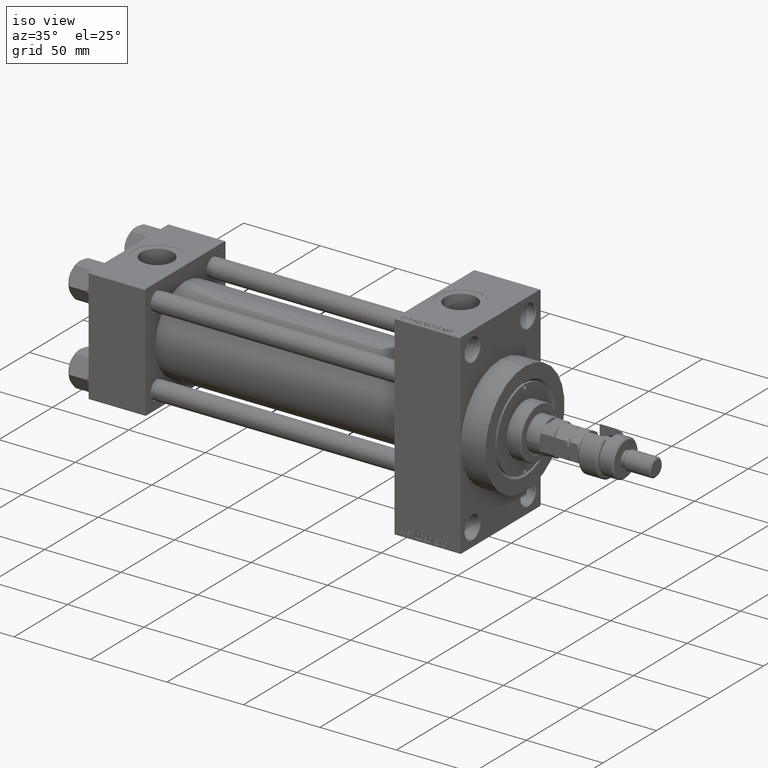
[diagram: clean part render]
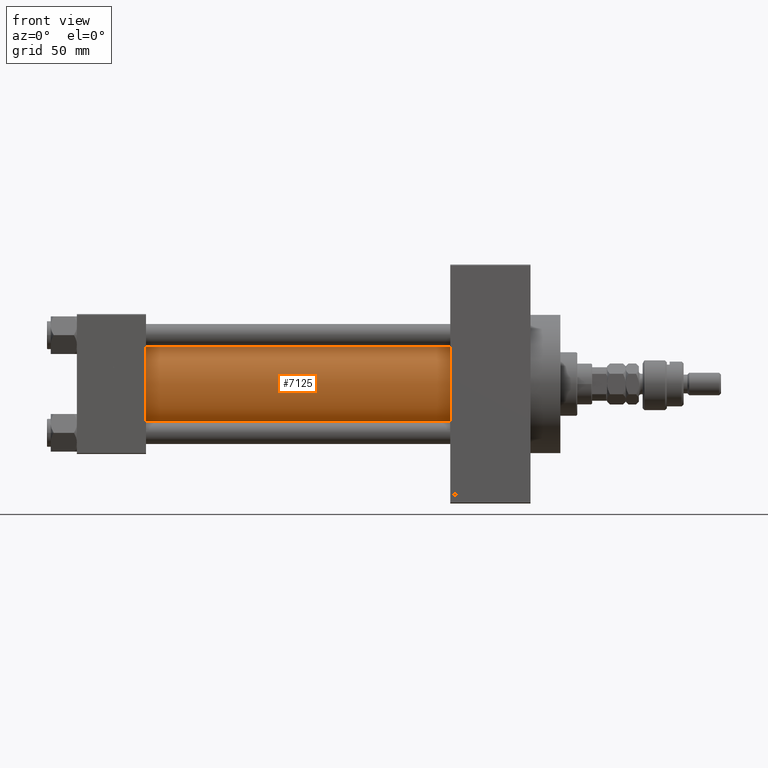
[diagram: tour spotlight — one face highlighted and labeled with its STEP entity id]
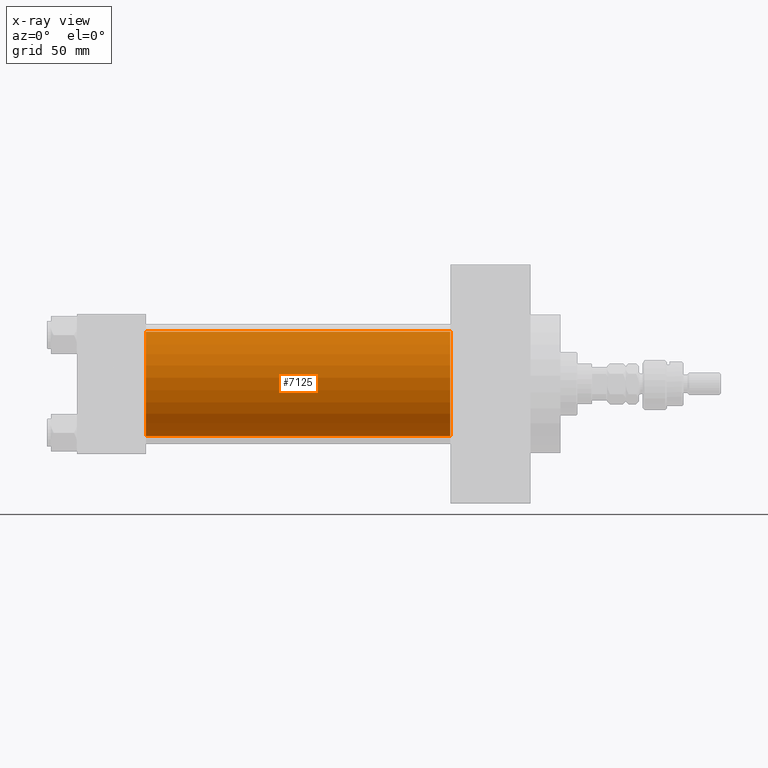
[diagram: x-ray of the same camera — body ghosted, this tour face saturated]
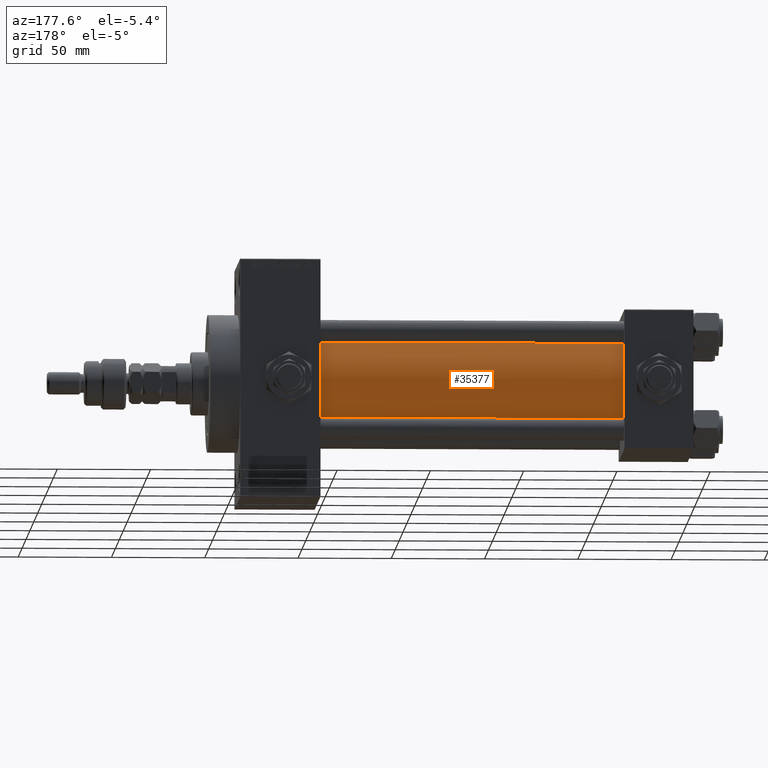
[diagram: tour spotlight — one face highlighted and labeled with its STEP entity id]
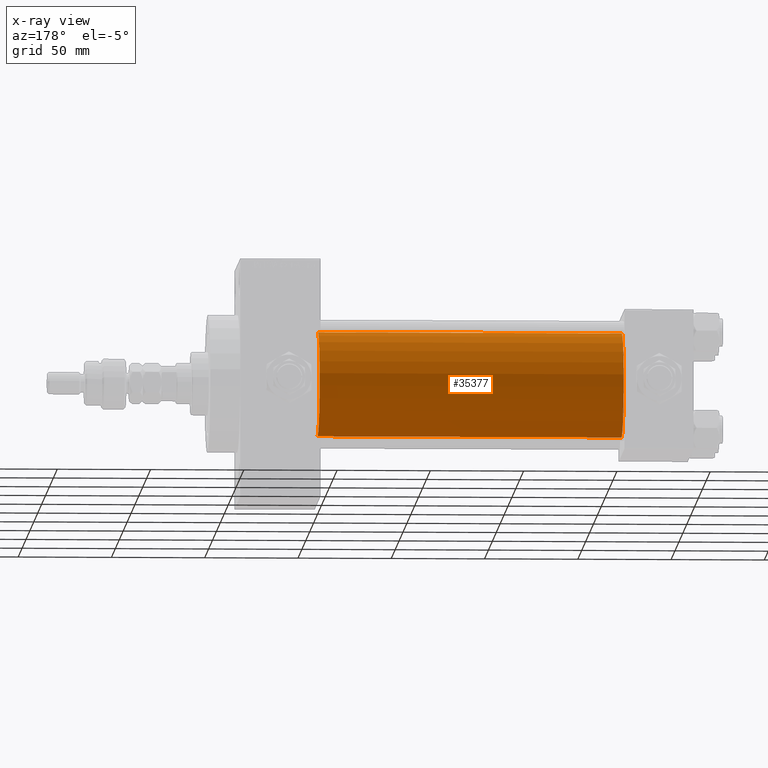
[diagram: x-ray of the same camera — body ghosted, this tour face saturated]
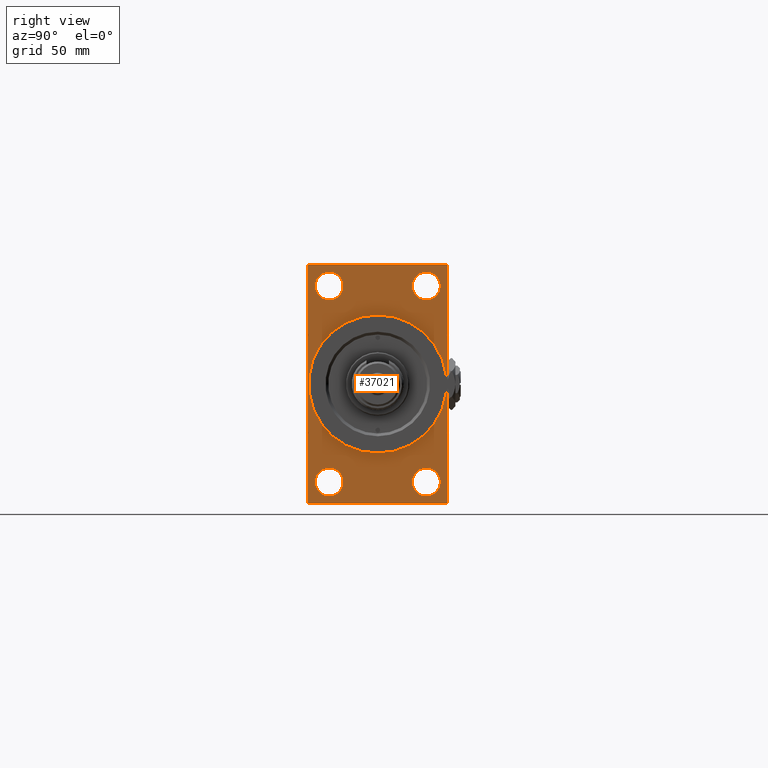
[diagram: tour spotlight — one face highlighted and labeled with its STEP entity id]
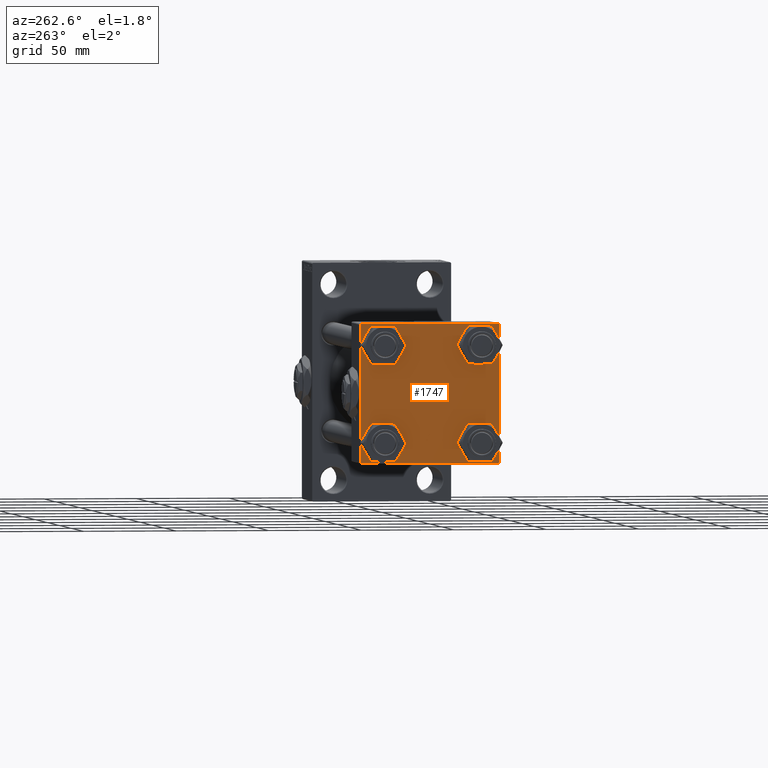
[diagram: tour spotlight — one face highlighted and labeled with its STEP entity id]
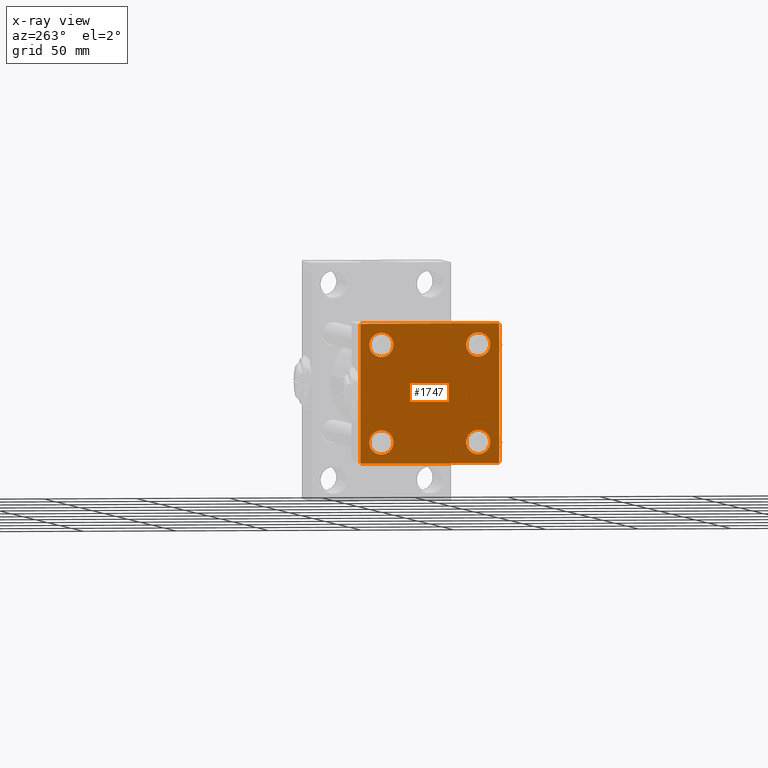
[diagram: x-ray of the same camera — body ghosted, this tour face saturated]
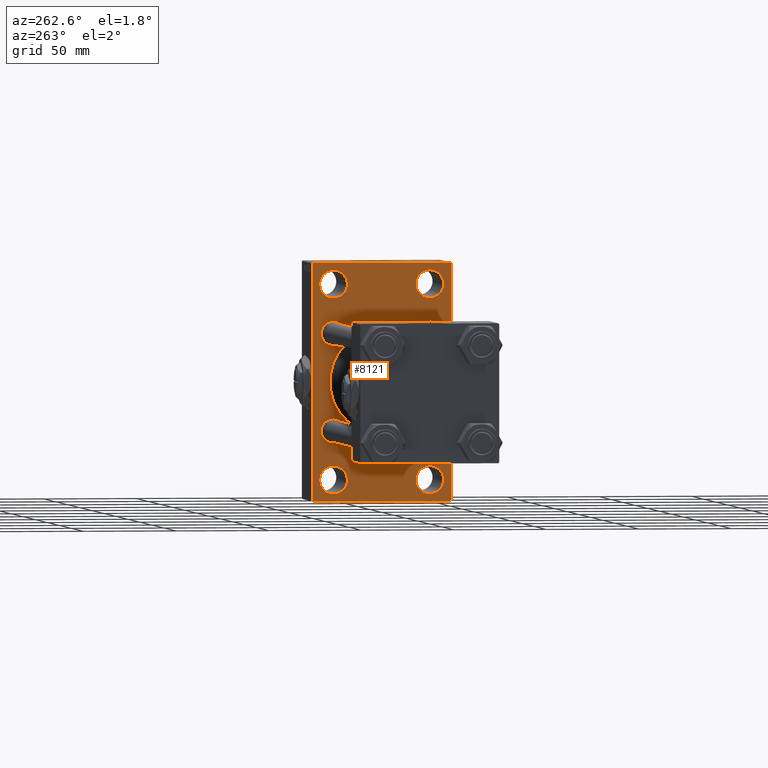
[diagram: tour spotlight — one face highlighted and labeled with its STEP entity id]
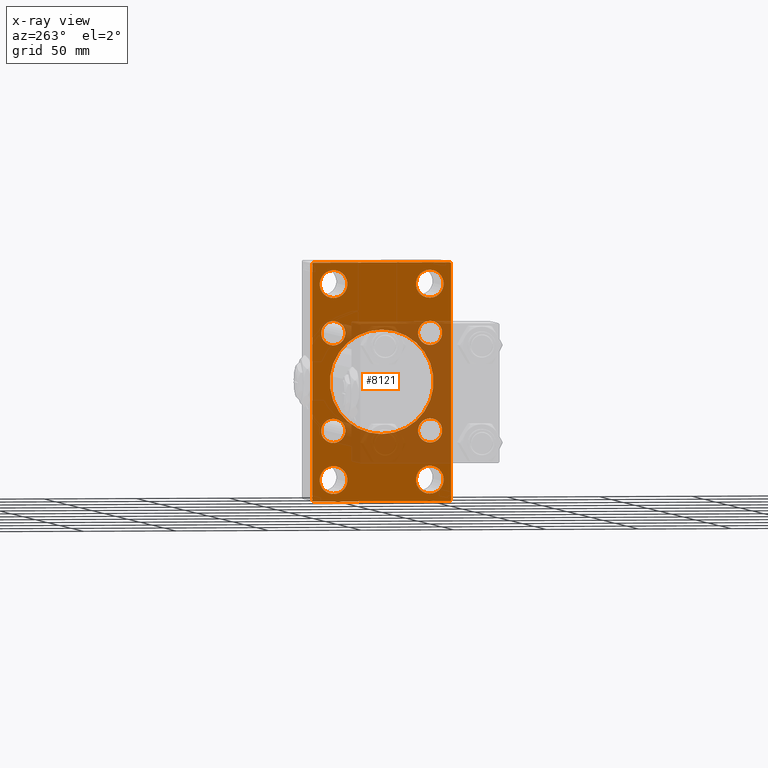
[diagram: x-ray of the same camera — body ghosted, this tour face saturated]
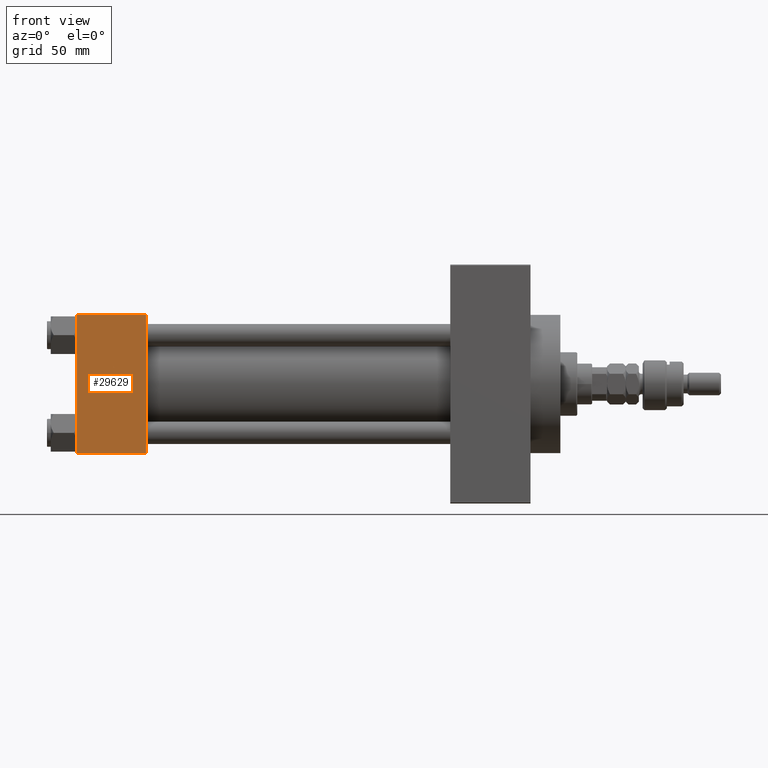
[diagram: tour spotlight — one face highlighted and labeled with its STEP entity id]
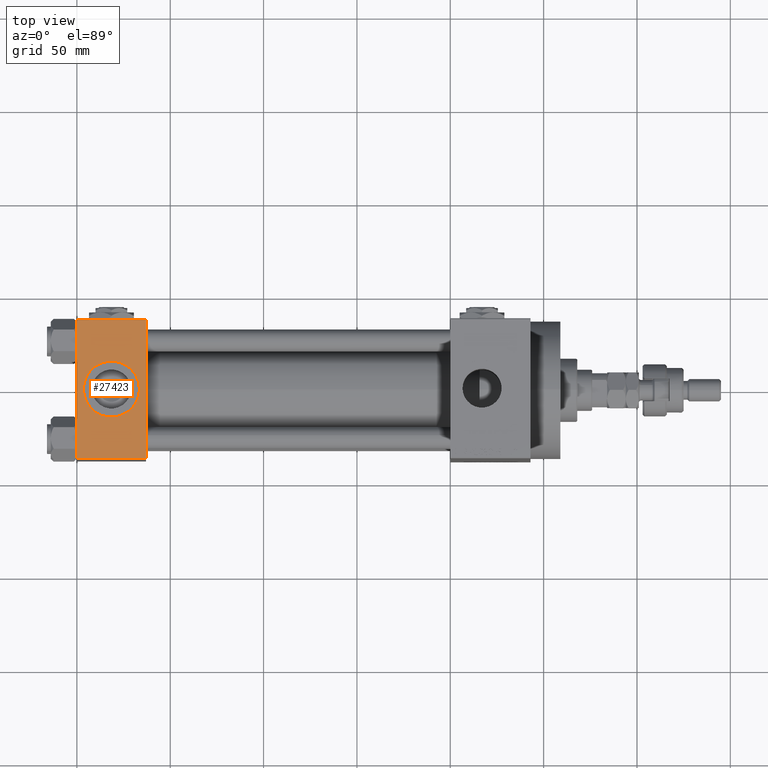
[diagram: tour spotlight — one face highlighted and labeled with its STEP entity id]
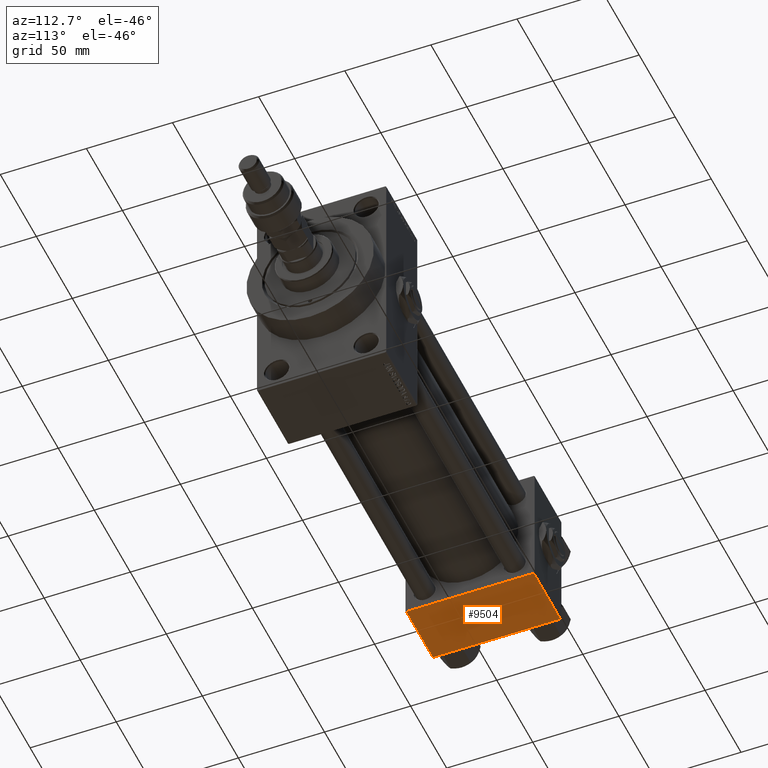
[diagram: tour spotlight — one face highlighted and labeled with its STEP entity id]
A machine part: a face-by-face anatomy tour. The part has 1297 B-rep faces; the first image is the clean iso view, then the 8 largest visible faces are spotlighted one at a time (largest first), each with its STEP entity span.

Face 1 — front view, entity #7125. An x-ray twin of the same camera follows (body ghosted, this face saturated) — the face is partly hidden behind the body. In plain terms, the highlighted cylindrical surface (partial cylindrical patch) has radius 28 mm, axis along (-1, -0, -0).
Definition (entity closure, byte-faithful):
#479 = DIRECTION ( 'NONE',  ( -1.000000000000000000, -0.000000000000000000, -0.000000000000000000 ) ) ;
#2561 = FACE_OUTER_BOUND ( 'NONE', #20864, .T. ) ;
#4379 = DIRECTION ( 'NONE',  ( 1.000000000000000000, 0.000000000000000000, 0.000000000000000000 ) ) ;
#4486 = CARTESIAN_POINT ( 'NONE',  ( 200.0000000000000000, 8.269258236473784371E-16, -28.00000000000000000 ) ) ;
#7125 = ADVANCED_FACE ( 'NONE', ( #2561 ), #51230, .T. ) ;
#8281 = VERTEX_POINT ( 'NONE', #4486 ) ;
#8457 = EDGE_CURVE ( 'NONE', #28771, #40558, #30944, .T. ) ;
#9701 = ORIENTED_EDGE ( 'NONE', *, *, #8457, .T. ) ;
#10754 = EDGE_CURVE ( 'NONE', #28771, #8281, #20560, .T. ) ;
#11192 = ORIENTED_EDGE ( 'NONE', *, *, #19634, .T. ) ;
#13938 = CARTESIAN_POINT ( 'NONE',  ( 200.0000000000000000, -2.602085213965210642E-15, 0.000000000000000000 ) ) ;
#17110 = DIRECTION ( 'NONE',  ( 0.000000000000000000, 0.000000000000000000, 1.000000000000000000 ) ) ;
#18036 = CARTESIAN_POINT ( 'NONE',  ( 37.00000000000000711, 8.269258236473784371E-16, -28.00000000000000000 ) ) ;
#19634 = EDGE_CURVE ( 'NONE', #40558, #24410, #37702, .T. ) ;
#20560 = CIRCLE ( 'NONE', #27286, 28.00000000000000000 ) ;
#20864 = EDGE_LOOP ( 'NONE', ( #46491, #46182, #9701, #11192 ) ) ;
#21088 = DIRECTION ( 'NONE',  ( 1.000000000000000000, -0.000000000000000000, 0.000000000000000000 ) ) ;
#22670 = DIRECTION ( 'NONE',  ( 0.000000000000000000, 0.000000000000000000, 1.000000000000000000 ) ) ;
#24410 = VERTEX_POINT ( 'NONE', #18036 ) ;
#27286 = AXIS2_PLACEMENT_3D ( 'NONE', #40410, #4379, #35922 ) ;
#27500 = LINE ( 'NONE', #47876, #38921 ) ;
#28771 = VERTEX_POINT ( 'NONE', #30042 ) ;
#28847 = AXIS2_PLACEMENT_3D ( 'NONE', #13938, #34617, #22670 ) ;
#30042 = CARTESIAN_POINT ( 'NONE',  ( 200.0000000000000000, -2.602085213965210642E-15, 28.00000000000000000 ) ) ;
#30944 = LINE ( 'NONE', #31721, #47504 ) ;
#31721 = CARTESIAN_POINT ( 'NONE',  ( 200.0000000000000000, -2.602085213965210642E-15, 28.00000000000000000 ) ) ;
#34617 = DIRECTION ( 'NONE',  ( -1.000000000000000000, -0.000000000000000000, -0.000000000000000000 ) ) ;
#35922 = DIRECTION ( 'NONE',  ( 0.000000000000000000, 0.000000000000000000, -1.000000000000000000 ) ) ;
#37702 = CIRCLE ( 'NONE', #50312, 28.00000000000000000 ) ;
#38921 = VECTOR ( 'NONE', #479, 1000.000000000000000 ) ;
#40410 = CARTESIAN_POINT ( 'NONE',  ( 200.0000000000000000, -2.602085213965210642E-15, 0.000000000000000000 ) ) ;
#40558 = VERTEX_POINT ( 'NONE', #52321 ) ;
#46062 = EDGE_CURVE ( 'NONE', #8281, #24410, #27500, .T. ) ;
#46182 = ORIENTED_EDGE ( 'NONE', *, *, #10754, .F. ) ;
#46491 = ORIENTED_EDGE ( 'NONE', *, *, #46062, .F. ) ;
#47504 = VECTOR ( 'NONE', #49411, 1000.000000000000000 ) ;
#47876 = CARTESIAN_POINT ( 'NONE',  ( 200.0000000000000000, 8.269258236473784371E-16, -28.00000000000000000 ) ) ;
#48871 = CARTESIAN_POINT ( 'NONE',  ( 37.00000000000000711, -2.602085213965210642E-15, 0.000000000000000000 ) ) ;
#49411 = DIRECTION ( 'NONE',  ( -1.000000000000000000, -0.000000000000000000, -0.000000000000000000 ) ) ;
#50312 = AXIS2_PLACEMENT_3D ( 'NONE', #48871, #21088, #17110 ) ;
#51230 = CYLINDRICAL_SURFACE ( 'NONE', #28847, 28.00000000000000000 ) ;
#52321 = CARTESIAN_POINT ( 'NONE',  ( 37.00000000000000711, -2.602085213965210642E-15, 28.00000000000000000 ) ) ;

Face 2 — auxiliary view, entity #35377. An x-ray twin of the same camera follows (body ghosted, this face saturated) — the face is partly hidden behind the body. In plain terms, the highlighted cylindrical surface (partial cylindrical patch) has radius 28 mm, axis along (-1, -0, -0).
Definition (entity closure, byte-faithful):
#479 = DIRECTION ( 'NONE',  ( -1.000000000000000000, -0.000000000000000000, -0.000000000000000000 ) ) ;
#1512 = AXIS2_PLACEMENT_3D ( 'NONE', #22332, #38253, #42730 ) ;
#2091 = CARTESIAN_POINT ( 'NONE',  ( 200.0000000000000000, -2.602085213965210642E-15, 0.000000000000000000 ) ) ;
#4486 = CARTESIAN_POINT ( 'NONE',  ( 200.0000000000000000, 8.269258236473784371E-16, -28.00000000000000000 ) ) ;
#5673 = ORIENTED_EDGE ( 'NONE', *, *, #8457, .F. ) ;
#7947 = EDGE_LOOP ( 'NONE', ( #32048, #16789, #10946, #5673 ) ) ;
#8281 = VERTEX_POINT ( 'NONE', #4486 ) ;
#8457 = EDGE_CURVE ( 'NONE', #28771, #40558, #30944, .T. ) ;
#10946 = ORIENTED_EDGE ( 'NONE', *, *, #27859, .T. ) ;
#16789 = ORIENTED_EDGE ( 'NONE', *, *, #46062, .T. ) ;
#18036 = CARTESIAN_POINT ( 'NONE',  ( 37.00000000000000711, 8.269258236473784371E-16, -28.00000000000000000 ) ) ;
#18222 = DIRECTION ( 'NONE',  ( 1.000000000000000000, 0.000000000000000000, 0.000000000000000000 ) ) ;
#19698 = CYLINDRICAL_SURFACE ( 'NONE', #31848, 28.00000000000000000 ) ;
#19961 = DIRECTION ( 'NONE',  ( -1.000000000000000000, -0.000000000000000000, -0.000000000000000000 ) ) ;
#21031 = CIRCLE ( 'NONE', #49772, 28.00000000000000000 ) ;
#22332 = CARTESIAN_POINT ( 'NONE',  ( 37.00000000000000711, -2.602085213965210642E-15, 0.000000000000000000 ) ) ;
#24311 = CIRCLE ( 'NONE', #1512, 28.00000000000000000 ) ;
#24410 = VERTEX_POINT ( 'NONE', #18036 ) ;
#27500 = LINE ( 'NONE', #47876, #38921 ) ;
#27859 = EDGE_CURVE ( 'NONE', #24410, #40558, #24311, .T. ) ;
#28771 = VERTEX_POINT ( 'NONE', #30042 ) ;
#30042 = CARTESIAN_POINT ( 'NONE',  ( 200.0000000000000000, -2.602085213965210642E-15, 28.00000000000000000 ) ) ;
#30944 = LINE ( 'NONE', #31721, #47504 ) ;
#31721 = CARTESIAN_POINT ( 'NONE',  ( 200.0000000000000000, -2.602085213965210642E-15, 28.00000000000000000 ) ) ;
#31848 = AXIS2_PLACEMENT_3D ( 'NONE', #35867, #19961, #36130 ) ;
#32048 = ORIENTED_EDGE ( 'NONE', *, *, #40346, .F. ) ;
#35377 = ADVANCED_FACE ( 'NONE', ( #40086 ), #19698, .T. ) ;
#35867 = CARTESIAN_POINT ( 'NONE',  ( 200.0000000000000000, -2.602085213965210642E-15, 0.000000000000000000 ) ) ;
#36130 = DIRECTION ( 'NONE',  ( 0.000000000000000000, 0.000000000000000000, 1.000000000000000000 ) ) ;
#37850 = DIRECTION ( 'NONE',  ( 0.000000000000000000, 0.000000000000000000, -1.000000000000000000 ) ) ;
#38253 = DIRECTION ( 'NONE',  ( 1.000000000000000000, -0.000000000000000000, 0.000000000000000000 ) ) ;
#38921 = VECTOR ( 'NONE', #479, 1000.000000000000000 ) ;
#40086 = FACE_OUTER_BOUND ( 'NONE', #7947, .T. ) ;
#40346 = EDGE_CURVE ( 'NONE', #8281, #28771, #21031, .T. ) ;
#40558 = VERTEX_POINT ( 'NONE', #52321 ) ;
#42730 = DIRECTION ( 'NONE',  ( 0.000000000000000000, 0.000000000000000000, 1.000000000000000000 ) ) ;
#46062 = EDGE_CURVE ( 'NONE', #8281, #24410, #27500, .T. ) ;
#47504 = VECTOR ( 'NONE', #49411, 1000.000000000000000 ) ;
#47876 = CARTESIAN_POINT ( 'NONE',  ( 200.0000000000000000, 8.269258236473784371E-16, -28.00000000000000000 ) ) ;
#49411 = DIRECTION ( 'NONE',  ( -1.000000000000000000, -0.000000000000000000, -0.000000000000000000 ) ) ;
#49772 = AXIS2_PLACEMENT_3D ( 'NONE', #2091, #18222, #37850 ) ;
#52321 = CARTESIAN_POINT ( 'NONE',  ( 37.00000000000000711, -2.602085213965210642E-15, 28.00000000000000000 ) ) ;

Face 3 — right view, entity #37021. In plain terms, the highlighted planar face has unit normal (-1, 0, 0).
Definition (entity closure, byte-faithful):
#409 = CARTESIAN_POINT ( 'NONE',  ( 243.0000000000000000, -37.49999999999999289, 63.99999999999997158 ) ) ;
#755 = CARTESIAN_POINT ( 'NONE',  ( 243.0000000000000000, 37.49999999999999289, -63.50000000000007105 ) ) ;
#2437 = EDGE_LOOP ( 'NONE', ( #3268, #38711 ) ) ;
#3268 = ORIENTED_EDGE ( 'NONE', *, *, #43937, .T. ) ;
#3518 = CARTESIAN_POINT ( 'NONE',  ( 243.0000000000000000, 37.49999999999999289, -64.00000000000000000 ) ) ;
#3789 = VERTEX_POINT ( 'NONE', #48298 ) ;
#4241 = CIRCLE ( 'NONE', #33863, 7.500000000000034639 ) ;
#4284 = VERTEX_POINT ( 'NONE', #43746 ) ;
#4748 = VERTEX_POINT ( 'NONE', #49204 ) ;
#5254 = VECTOR ( 'NONE', #24224, 1000.000000000000000 ) ;
#5319 = CARTESIAN_POINT ( 'NONE',  ( 243.0000000000000000, 26.00000000000000000, 44.99999999999995737 ) ) ;
#5510 = ORIENTED_EDGE ( 'NONE', *, *, #6406, .T. ) ;
#5576 = FACE_BOUND ( 'NONE', #2437, .T. ) ;
#5837 = AXIS2_PLACEMENT_3D ( 'NONE', #51538, #22970, #15279 ) ;
#5951 = AXIS2_PLACEMENT_3D ( 'NONE', #23016, #15858, #11622 ) ;
#6019 = AXIS2_PLACEMENT_3D ( 'NONE', #51098, #22797, #7166 ) ;
#6406 = EDGE_CURVE ( 'NONE', #14502, #4284, #44901, .T. ) ;
#6436 = ORIENTED_EDGE ( 'NONE', *, *, #20385, .F. ) ;
#6548 = AXIS2_PLACEMENT_3D ( 'NONE', #14294, #42132, #13778 ) ;
#6700 = CIRCLE ( 'NONE', #32903, 7.500000000000034639 ) ;
#6778 = VERTEX_POINT ( 'NONE', #41827 ) ;
#7128 = AXIS2_PLACEMENT_3D ( 'NONE', #30068, #14157, #9148 ) ;
#7166 = DIRECTION ( 'NONE',  ( 0.000000000000000000, 0.000000000000000000, 1.000000000000000000 ) ) ;
#7433 = CARTESIAN_POINT ( 'NONE',  ( 243.0000000000000000, -25.99999999999999645, 44.99999999999996447 ) ) ;
#7477 = DIRECTION ( 'NONE',  ( 0.000000000000000000, 0.000000000000000000, 1.000000000000000000 ) ) ;
#8058 = VECTOR ( 'NONE', #29420, 1000.000000000000114 ) ;
#8607 = LINE ( 'NONE', #409, #5254 ) ;
#9148 = DIRECTION ( 'NONE',  ( 0.000000000000000000, 0.000000000000000000, 1.000000000000000000 ) ) ;
#9510 = DIRECTION ( 'NONE',  ( -0.000000000000000000, 0.7071067811865574537, 0.7071067811865376918 ) ) ;
#9972 = VERTEX_POINT ( 'NONE', #17868 ) ;
#10106 = ORIENTED_EDGE ( 'NONE', *, *, #24201, .T. ) ;
#10948 = ORIENTED_EDGE ( 'NONE', *, *, #35670, .F. ) ;
#11042 = CIRCLE ( 'NONE', #5951, 7.500000000000034639 ) ;
#11112 = DIRECTION ( 'NONE',  ( 0.000000000000000000, -1.000000000000000000, -1.850371707708594563E-16 ) ) ;
#11278 = VERTEX_POINT ( 'NONE', #35275 ) ;
#11622 = DIRECTION ( 'NONE',  ( 0.000000000000000000, 0.000000000000000000, 1.000000000000000000 ) ) ;
#12150 = CIRCLE ( 'NONE', #40897, 7.500000000000034639 ) ;
#12202 = DIRECTION ( 'NONE',  ( 0.000000000000000000, 0.000000000000000000, 1.000000000000000000 ) ) ;
#12349 = CARTESIAN_POINT ( 'NONE',  ( 243.0000000000000000, 26.00000000000000000, -52.49999999999999289 ) ) ;
#12978 = VERTEX_POINT ( 'NONE', #51254 ) ;
#13180 = EDGE_CURVE ( 'NONE', #42836, #11278, #34184, .T. ) ;
#13578 = DIRECTION ( 'NONE',  ( 1.000000000000000000, 0.000000000000000000, 0.000000000000000000 ) ) ;
#13658 = ORIENTED_EDGE ( 'NONE', *, *, #50178, .T. ) ;
#13732 = DIRECTION ( 'NONE',  ( 0.000000000000000000, 0.000000000000000000, 1.000000000000000000 ) ) ;
#13778 = DIRECTION ( 'NONE',  ( -0.000000000000000000, 0.000000000000000000, 1.000000000000000000 ) ) ;
#13899 = AXIS2_PLACEMENT_3D ( 'NONE', #40811, #32598, #12202 ) ;
#13986 = DIRECTION ( 'NONE',  ( -1.000000000000000000, 0.000000000000000000, -0.000000000000000000 ) ) ;
#14031 = DIRECTION ( 'NONE',  ( -0.000000000000000000, -0.7071067811865524577, -0.7071067811865426878 ) ) ;
#14157 = DIRECTION ( 'NONE',  ( -1.000000000000000000, 0.000000000000000000, -0.000000000000000000 ) ) ;
#14294 = CARTESIAN_POINT ( 'NONE',  ( 243.0000000000000000, 0.000000000000000000, 0.000000000000000000 ) ) ;
#14502 = VERTEX_POINT ( 'NONE', #30345 ) ;
#15279 = DIRECTION ( 'NONE',  ( 0.000000000000000000, 0.000000000000000000, -1.000000000000000000 ) ) ;
#15323 = EDGE_CURVE ( 'NONE', #4748, #37028, #12150, .T. ) ;
#15418 = LINE ( 'NONE', #3518, #34728 ) ;
#15682 = DIRECTION ( 'NONE',  ( 0.000000000000000000, -1.000000000000000000, -1.850371707708594563E-16 ) ) ;
#15858 = DIRECTION ( 'NONE',  ( -1.000000000000000000, 0.000000000000000000, -0.000000000000000000 ) ) ;
#16017 = CARTESIAN_POINT ( 'NONE',  ( 243.0000000000000000, 4.531193156845206793E-15, -37.00000000000000000 ) ) ;
#17122 = CARTESIAN_POINT ( 'NONE',  ( 243.0000000000000000, 0.000000000000000000, 37.00000000000000000 ) ) ;
#17151 = EDGE_CURVE ( 'NONE', #37028, #4748, #20669, .T. ) ;
#17449 = CARTESIAN_POINT ( 'NONE',  ( 243.0000000000000000, 26.00000000000000000, 52.49999999999999289 ) ) ;
#17605 = EDGE_CURVE ( 'NONE', #6778, #26083, #46890, .T. ) ;
#17868 = CARTESIAN_POINT ( 'NONE',  ( 243.0000000000000000, 37.00000000000000000, 63.99999999999998579 ) ) ;
#20102 = AXIS2_PLACEMENT_3D ( 'NONE', #40054, #32624, #7477 ) ;
#20385 = EDGE_CURVE ( 'NONE', #26003, #32837, #35113, .T. ) ;
#20669 = CIRCLE ( 'NONE', #7128, 7.500000000000034639 ) ;
#20938 = LINE ( 'NONE', #29148, #8058 ) ;
#21675 = CIRCLE ( 'NONE', #48718, 37.00000000000000000 ) ;
#22400 = EDGE_LOOP ( 'NONE', ( #5510, #33240 ) ) ;
#22629 = CIRCLE ( 'NONE', #20102, 7.500000000000034639 ) ;
#22797 = DIRECTION ( 'NONE',  ( -1.000000000000000000, 0.000000000000000000, -0.000000000000000000 ) ) ;
#22970 = DIRECTION ( 'NONE',  ( 1.000000000000000000, 0.000000000000000000, 0.000000000000000000 ) ) ;
#23016 = CARTESIAN_POINT ( 'NONE',  ( 243.0000000000000000, -25.99999999999999645, -52.49999999999999289 ) ) ;
#23317 = ORIENTED_EDGE ( 'NONE', *, *, #13180, .T. ) ;
#23936 = CARTESIAN_POINT ( 'NONE',  ( 243.0000000000000000, -37.00000000000001421, 63.99999999999997158 ) ) ;
#24057 = LINE ( 'NONE', #43669, #31995 ) ;
#24201 = EDGE_CURVE ( 'NONE', #26083, #6778, #22629, .T. ) ;
#24224 = DIRECTION ( 'NONE',  ( 0.000000000000000000, 0.000000000000000000, -1.000000000000000000 ) ) ;
#24497 = VERTEX_POINT ( 'NONE', #17122 ) ;
#24792 = VERTEX_POINT ( 'NONE', #16017 ) ;
#25704 = FACE_BOUND ( 'NONE', #50201, .T. ) ;
#25858 = LINE ( 'NONE', #49933, #39822 ) ;
#26003 = VERTEX_POINT ( 'NONE', #37678 ) ;
#26083 = VERTEX_POINT ( 'NONE', #7433 ) ;
#28082 = ORIENTED_EDGE ( 'NONE', *, *, #47881, .T. ) ;
#28667 = CIRCLE ( 'NONE', #5837, 37.00000000000000000 ) ;
#29148 = CARTESIAN_POINT ( 'NONE',  ( 243.0000000000000000, -37.00000000000002132, -64.00000000000001421 ) ) ;
#29420 = DIRECTION ( 'NONE',  ( 0.000000000000000000, 0.7071067811865376918, -0.7071067811865573427 ) ) ;
#29650 = CARTESIAN_POINT ( 'NONE',  ( 243.0000000000000000, 37.49999999999999289, -63.50000000000007105 ) ) ;
#30068 = CARTESIAN_POINT ( 'NONE',  ( 243.0000000000000000, 26.00000000000000000, 52.49999999999999289 ) ) ;
#30345 = CARTESIAN_POINT ( 'NONE',  ( 243.0000000000000000, 26.00000000000000000, -60.00000000000002842 ) ) ;
#30364 = DIRECTION ( 'NONE',  ( 0.000000000000000000, -0.7071067811865474617, 0.7071067811865474617 ) ) ;
#30523 = DIRECTION ( 'NONE',  ( 0.000000000000000000, 0.000000000000000000, -1.000000000000000000 ) ) ;
#30945 = EDGE_LOOP ( 'NONE', ( #10948, #32989 ) ) ;
#31995 = VECTOR ( 'NONE', #11112, 1000.000000000000000 ) ;
#32232 = CARTESIAN_POINT ( 'NONE',  ( 243.0000000000000000, -25.99999999999999645, -52.49999999999999289 ) ) ;
#32598 = DIRECTION ( 'NONE',  ( -1.000000000000000000, 0.000000000000000000, -0.000000000000000000 ) ) ;
#32624 = DIRECTION ( 'NONE',  ( -1.000000000000000000, 0.000000000000000000, -0.000000000000000000 ) ) ;
#32673 = EDGE_CURVE ( 'NONE', #3789, #43994, #20938, .T. ) ;
#32754 = DIRECTION ( 'NONE',  ( 0.000000000000000000, 0.000000000000000000, 1.000000000000000000 ) ) ;
#32817 = EDGE_LOOP ( 'NONE', ( #52012, #34596 ) ) ;
#32837 = VERTEX_POINT ( 'NONE', #755 ) ;
#32903 = AXIS2_PLACEMENT_3D ( 'NONE', #12349, #37002, #32754 ) ;
#32989 = ORIENTED_EDGE ( 'NONE', *, *, #40565, .F. ) ;
#33056 = VECTOR ( 'NONE', #9510, 999.9999999999998863 ) ;
#33240 = ORIENTED_EDGE ( 'NONE', *, *, #40679, .T. ) ;
#33863 = AXIS2_PLACEMENT_3D ( 'NONE', #32232, #36214, #44645 ) ;
#34184 = LINE ( 'NONE', #50289, #45162 ) ;
#34596 = ORIENTED_EDGE ( 'NONE', *, *, #15323, .T. ) ;
#34728 = VECTOR ( 'NONE', #15682, 1000.000000000000000 ) ;
#35113 = LINE ( 'NONE', #39339, #45303 ) ;
#35270 = ORIENTED_EDGE ( 'NONE', *, *, #17605, .T. ) ;
#35275 = CARTESIAN_POINT ( 'NONE',  ( 243.0000000000000000, -37.49999999999999289, 63.50000000000000000 ) ) ;
#35374 = DIRECTION ( 'NONE',  ( 0.000000000000000000, -5.421010862427522170E-17, -1.000000000000000000 ) ) ;
#35417 = CARTESIAN_POINT ( 'NONE',  ( 243.0000000000000000, -25.99999999999999645, -60.00000000000002842 ) ) ;
#35481 = CARTESIAN_POINT ( 'NONE',  ( 243.0000000000000000, -37.00000000000002132, -64.00000000000001421 ) ) ;
#35625 = ORIENTED_EDGE ( 'NONE', *, *, #39384, .T. ) ;
#35670 = EDGE_CURVE ( 'NONE', #24497, #24792, #21675, .T. ) ;
#36214 = DIRECTION ( 'NONE',  ( -1.000000000000000000, 0.000000000000000000, -0.000000000000000000 ) ) ;
#37002 = DIRECTION ( 'NONE',  ( -1.000000000000000000, 0.000000000000000000, -0.000000000000000000 ) ) ;
#37021 = ADVANCED_FACE ( 'NONE', ( #25704, #5576, #41862, #38687, #37641, #50553 ), #46855, .F. ) ;
#37028 = VERTEX_POINT ( 'NONE', #5319 ) ;
#37424 = ORIENTED_EDGE ( 'NONE', *, *, #47523, .T. ) ;
#37641 = FACE_BOUND ( 'NONE', #30945, .T. ) ;
#37678 = CARTESIAN_POINT ( 'NONE',  ( 243.0000000000000000, 37.50000000000000000, 63.49999999999998579 ) ) ;
#38687 = FACE_BOUND ( 'NONE', #32817, .T. ) ;
#38711 = ORIENTED_EDGE ( 'NONE', *, *, #42513, .T. ) ;
#39176 = VERTEX_POINT ( 'NONE', #43474 ) ;
#39339 = CARTESIAN_POINT ( 'NONE',  ( 243.0000000000000000, 37.50000000000000000, 63.99999999999998579 ) ) ;
#39384 = EDGE_CURVE ( 'NONE', #9972, #42836, #24057, .T. ) ;
#39499 = ORIENTED_EDGE ( 'NONE', *, *, #47059, .F. ) ;
#39822 = VECTOR ( 'NONE', #30364, 1000.000000000000114 ) ;
#40054 = CARTESIAN_POINT ( 'NONE',  ( 243.0000000000000000, -25.99999999999999645, 52.50000000000000000 ) ) ;
#40565 = EDGE_CURVE ( 'NONE', #24792, #24497, #28667, .T. ) ;
#40679 = EDGE_CURVE ( 'NONE', #4284, #14502, #6700, .T. ) ;
#40811 = CARTESIAN_POINT ( 'NONE',  ( 243.0000000000000000, -25.99999999999999645, 52.50000000000000000 ) ) ;
#40897 = AXIS2_PLACEMENT_3D ( 'NONE', #17449, #13986, #13732 ) ;
#41442 = VERTEX_POINT ( 'NONE', #35417 ) ;
#41827 = CARTESIAN_POINT ( 'NONE',  ( 243.0000000000000000, -25.99999999999999645, 60.00000000000003553 ) ) ;
#41862 = FACE_BOUND ( 'NONE', #22400, .T. ) ;
#42132 = DIRECTION ( 'NONE',  ( -1.000000000000000000, 0.000000000000000000, -0.000000000000000000 ) ) ;
#42513 = EDGE_CURVE ( 'NONE', #12978, #41442, #4241, .T. ) ;
#42836 = VERTEX_POINT ( 'NONE', #23936 ) ;
#43474 = CARTESIAN_POINT ( 'NONE',  ( 243.0000000000000000, 37.00000000000004974, -64.00000000000000000 ) ) ;
#43669 = CARTESIAN_POINT ( 'NONE',  ( 243.0000000000000000, 37.50000000000000000, 63.99999999999998579 ) ) ;
#43746 = CARTESIAN_POINT ( 'NONE',  ( 243.0000000000000000, 26.00000000000000000, -44.99999999999995737 ) ) ;
#43937 = EDGE_CURVE ( 'NONE', #41442, #12978, #11042, .T. ) ;
#43994 = VERTEX_POINT ( 'NONE', #35481 ) ;
#44645 = DIRECTION ( 'NONE',  ( 0.000000000000000000, 0.000000000000000000, 1.000000000000000000 ) ) ;
#44901 = CIRCLE ( 'NONE', #6019, 7.500000000000034639 ) ;
#45162 = VECTOR ( 'NONE', #14031, 1000.000000000000000 ) ;
#45303 = VECTOR ( 'NONE', #35374, 1000.000000000000000 ) ;
#46317 = EDGE_LOOP ( 'NONE', ( #13658, #49887, #39499, #37424, #6436, #28082, #35625, #23317 ) ) ;
#46657 = CARTESIAN_POINT ( 'NONE',  ( 243.0000000000000000, 0.000000000000000000, 0.000000000000000000 ) ) ;
#46855 = PLANE ( 'NONE',  #6548 ) ;
#46890 = CIRCLE ( 'NONE', #13899, 7.500000000000034639 ) ;
#47059 = EDGE_CURVE ( 'NONE', #39176, #43994, #15418, .T. ) ;
#47523 = EDGE_CURVE ( 'NONE', #39176, #32837, #49737, .T. ) ;
#47881 = EDGE_CURVE ( 'NONE', #26003, #9972, #25858, .T. ) ;
#48298 = CARTESIAN_POINT ( 'NONE',  ( 243.0000000000000000, -37.49999999999999289, -63.50000000000002842 ) ) ;
#48718 = AXIS2_PLACEMENT_3D ( 'NONE', #46657, #13578, #30523 ) ;
#49204 = CARTESIAN_POINT ( 'NONE',  ( 243.0000000000000000, 26.00000000000000000, 60.00000000000002842 ) ) ;
#49737 = LINE ( 'NONE', #29650, #33056 ) ;
#49887 = ORIENTED_EDGE ( 'NONE', *, *, #32673, .T. ) ;
#49933 = CARTESIAN_POINT ( 'NONE',  ( 243.0000000000000000, 37.00000000000000000, 63.99999999999998579 ) ) ;
#50178 = EDGE_CURVE ( 'NONE', #11278, #3789, #8607, .T. ) ;
#50201 = EDGE_LOOP ( 'NONE', ( #10106, #35270 ) ) ;
#50289 = CARTESIAN_POINT ( 'NONE',  ( 243.0000000000000000, -37.49999999999999289, 63.50000000000000000 ) ) ;
#50553 = FACE_OUTER_BOUND ( 'NONE', #46317, .T. ) ;
#51098 = CARTESIAN_POINT ( 'NONE',  ( 243.0000000000000000, 26.00000000000000000, -52.49999999999999289 ) ) ;
#51254 = CARTESIAN_POINT ( 'NONE',  ( 243.0000000000000000, -25.99999999999999645, -44.99999999999995737 ) ) ;
#51538 = CARTESIAN_POINT ( 'NONE',  ( 243.0000000000000000, 0.000000000000000000, 0.000000000000000000 ) ) ;
#52012 = ORIENTED_EDGE ( 'NONE', *, *, #17151, .T. ) ;

Face 4 — auxiliary view, entity #1747. An x-ray twin of the same camera follows (body ghosted, this face saturated) — the face is partly hidden behind the body. In plain terms, the highlighted planar face has unit normal (-1, 0, 0).
Definition (entity closure, byte-faithful):
#379 = AXIS2_PLACEMENT_3D ( 'NONE', #3295, #27662, #19451 ) ;
#882 = ORIENTED_EDGE ( 'NONE', *, *, #30644, .T. ) ;
#917 = EDGE_LOOP ( 'NONE', ( #37986, #42788 ) ) ;
#1301 = EDGE_CURVE ( 'NONE', #41260, #21167, #6799, .T. ) ;
#1747 = ADVANCED_FACE ( 'NONE', ( #41394, #5110, #51379, #18848, #2453 ), #6673, .T. ) ;
#1834 = VERTEX_POINT ( 'NONE', #7187 ) ;
#2453 = FACE_OUTER_BOUND ( 'NONE', #22380, .T. ) ;
#3295 = CARTESIAN_POINT ( 'NONE',  ( 0.000000000000000000, -26.14999999999999147, 26.15000000000000924 ) ) ;
#3592 = VECTOR ( 'NONE', #40721, 1000.000000000000114 ) ;
#3741 = CIRCLE ( 'NONE', #379, 6.500000000000023093 ) ;
#4229 = DIRECTION ( 'NONE',  ( 0.000000000000000000, 9.251858538542971581E-17, -1.000000000000000000 ) ) ;
#4482 = DIRECTION ( 'NONE',  ( 0.000000000000000000, 0.000000000000000000, 1.000000000000000000 ) ) ;
#5110 = FACE_BOUND ( 'NONE', #45985, .T. ) ;
#5348 = DIRECTION ( 'NONE',  ( 0.000000000000000000, -1.000000000000000000, -9.251858538542971581E-17 ) ) ;
#5480 = CARTESIAN_POINT ( 'NONE',  ( 0.000000000000000000, -26.14999999999999147, -32.65000000000002700 ) ) ;
#5528 = CARTESIAN_POINT ( 'NONE',  ( 0.000000000000000000, -37.24999999999975842, -37.25000000000027001 ) ) ;
#6673 = PLANE ( 'NONE',  #33832 ) ;
#6799 = LINE ( 'NONE', #15250, #46470 ) ;
#6900 = VERTEX_POINT ( 'NONE', #5480 ) ;
#7151 = VERTEX_POINT ( 'NONE', #48334 ) ;
#7187 = CARTESIAN_POINT ( 'NONE',  ( 0.000000000000000000, 36.99999999999997868, -37.50000000000000000 ) ) ;
#7295 = CARTESIAN_POINT ( 'NONE',  ( 0.000000000000000000, 26.14999999999999858, 26.15000000000000213 ) ) ;
#7703 = CARTESIAN_POINT ( 'NONE',  ( 0.000000000000000000, 26.14999999999999858, 32.65000000000002700 ) ) ;
#8052 = DIRECTION ( 'NONE',  ( 0.000000000000000000, 0.000000000000000000, 1.000000000000000000 ) ) ;
#8461 = CARTESIAN_POINT ( 'NONE',  ( 0.000000000000000000, -26.14999999999999147, -26.15000000000000924 ) ) ;
#8906 = AXIS2_PLACEMENT_3D ( 'NONE', #37653, #25457, #18029 ) ;
#8933 = CARTESIAN_POINT ( 'NONE',  ( 0.000000000000000000, 37.24999999999999289, 37.24999999999999289 ) ) ;
#9420 = EDGE_CURVE ( 'NONE', #51163, #41260, #12895, .T. ) ;
#9441 = CARTESIAN_POINT ( 'NONE',  ( 0.000000000000000000, 37.49999999999999289, -37.50000000000000000 ) ) ;
#9735 = CIRCLE ( 'NONE', #39335, 6.500000000000015987 ) ;
#9888 = ORIENTED_EDGE ( 'NONE', *, *, #29024, .F. ) ;
#10472 = DIRECTION ( 'NONE',  ( 0.000000000000000000, 0.000000000000000000, 1.000000000000000000 ) ) ;
#10602 = CIRCLE ( 'NONE', #8906, 6.500000000000015987 ) ;
#10644 = AXIS2_PLACEMENT_3D ( 'NONE', #8461, #40773, #4482 ) ;
#10878 = EDGE_CURVE ( 'NONE', #45836, #7151, #17995, .T. ) ;
#11401 = EDGE_LOOP ( 'NONE', ( #48515, #30569 ) ) ;
#11545 = DIRECTION ( 'NONE',  ( 0.000000000000000000, 0.000000000000000000, -1.000000000000000000 ) ) ;
#12195 = AXIS2_PLACEMENT_3D ( 'NONE', #20757, #37191, #8052 ) ;
#12895 = LINE ( 'NONE', #8933, #3592 ) ;
#13796 = DIRECTION ( 'NONE',  ( -0.000000000000000000, 0.7071067811865474617, 0.7071067811865474617 ) ) ;
#13828 = EDGE_CURVE ( 'NONE', #16950, #43692, #3741, .T. ) ;
#13848 = EDGE_CURVE ( 'NONE', #43692, #16950, #18141, .T. ) ;
#14777 = DIRECTION ( 'NONE',  ( 0.000000000000000000, 0.000000000000000000, 1.000000000000000000 ) ) ;
#15250 = CARTESIAN_POINT ( 'NONE',  ( 0.000000000000000000, 37.49999999999999289, 37.50000000000000000 ) ) ;
#15369 = EDGE_CURVE ( 'NONE', #19900, #39808, #41813, .T. ) ;
#15493 = DIRECTION ( 'NONE',  ( 1.000000000000000000, -0.000000000000000000, 0.000000000000000000 ) ) ;
#15889 = ORIENTED_EDGE ( 'NONE', *, *, #9420, .T. ) ;
#16303 = CARTESIAN_POINT ( 'NONE',  ( 0.000000000000000000, 36.99999999999999289, 37.50000000000000000 ) ) ;
#16950 = VERTEX_POINT ( 'NONE', #29933 ) ;
#17062 = EDGE_CURVE ( 'NONE', #21167, #1834, #51570, .T. ) ;
#17356 = CARTESIAN_POINT ( 'NONE',  ( 0.000000000000000000, -37.50000000000000711, 36.99999999999999289 ) ) ;
#17995 = CIRCLE ( 'NONE', #36669, 6.500000000000023093 ) ;
#18029 = DIRECTION ( 'NONE',  ( 0.000000000000000000, 0.000000000000000000, 1.000000000000000000 ) ) ;
#18141 = CIRCLE ( 'NONE', #12195, 6.500000000000023093 ) ;
#18377 = ORIENTED_EDGE ( 'NONE', *, *, #1301, .T. ) ;
#18424 = DIRECTION ( 'NONE',  ( 1.000000000000000000, -0.000000000000000000, 0.000000000000000000 ) ) ;
#18590 = DIRECTION ( 'NONE',  ( -0.000000000000000000, 0.000000000000000000, 1.000000000000000000 ) ) ;
#18848 = FACE_BOUND ( 'NONE', #47940, .T. ) ;
#19451 = DIRECTION ( 'NONE',  ( 0.000000000000000000, 0.000000000000000000, 1.000000000000000000 ) ) ;
#19600 = LINE ( 'NONE', #32311, #30201 ) ;
#19753 = DIRECTION ( 'NONE',  ( 1.000000000000000000, -0.000000000000000000, 0.000000000000000000 ) ) ;
#19849 = EDGE_CURVE ( 'NONE', #21573, #6900, #10602, .T. ) ;
#19900 = VERTEX_POINT ( 'NONE', #47646 ) ;
#19985 = ORIENTED_EDGE ( 'NONE', *, *, #28373, .T. ) ;
#20757 = CARTESIAN_POINT ( 'NONE',  ( 0.000000000000000000, -26.14999999999999147, 26.15000000000000924 ) ) ;
#20883 = EDGE_CURVE ( 'NONE', #6900, #21573, #33500, .T. ) ;
#20967 = CARTESIAN_POINT ( 'NONE',  ( -0.000000000000000000, -37.25000000000000000, 37.25000000000000000 ) ) ;
#21167 = VERTEX_POINT ( 'NONE', #28793 ) ;
#21258 = CIRCLE ( 'NONE', #34809, 6.500000000000015987 ) ;
#21573 = VERTEX_POINT ( 'NONE', #30606 ) ;
#21686 = DIRECTION ( 'NONE',  ( 0.000000000000000000, -0.7071067811865524577, 0.7071067811865426878 ) ) ;
#22380 = EDGE_LOOP ( 'NONE', ( #18377, #48777, #19985, #29519, #22808, #46040, #9888, #15889 ) ) ;
#22431 = EDGE_CURVE ( 'NONE', #36323, #39808, #19600, .T. ) ;
#22808 = ORIENTED_EDGE ( 'NONE', *, *, #22431, .F. ) ;
#24008 = VECTOR ( 'NONE', #31744, 1000.000000000000114 ) ;
#24040 = VECTOR ( 'NONE', #29315, 1000.000000000000000 ) ;
#24295 = EDGE_CURVE ( 'NONE', #36323, #41360, #25990, .T. ) ;
#24909 = CARTESIAN_POINT ( 'NONE',  ( 0.000000000000000000, 26.14999999999999858, -19.64999999999998792 ) ) ;
#25457 = DIRECTION ( 'NONE',  ( 1.000000000000000000, -0.000000000000000000, 0.000000000000000000 ) ) ;
#25990 = LINE ( 'NONE', #20967, #26048 ) ;
#26048 = VECTOR ( 'NONE', #13796, 1000.000000000000114 ) ;
#26201 = CARTESIAN_POINT ( 'NONE',  ( 0.000000000000000000, 26.14999999999999858, -26.15000000000000213 ) ) ;
#26420 = VERTEX_POINT ( 'NONE', #47352 ) ;
#26707 = AXIS2_PLACEMENT_3D ( 'NONE', #7295, #15493, #32197 ) ;
#26862 = ORIENTED_EDGE ( 'NONE', *, *, #20883, .T. ) ;
#27662 = DIRECTION ( 'NONE',  ( 1.000000000000000000, -0.000000000000000000, 0.000000000000000000 ) ) ;
#28373 = EDGE_CURVE ( 'NONE', #1834, #19900, #38573, .T. ) ;
#28793 = CARTESIAN_POINT ( 'NONE',  ( 0.000000000000000000, 37.49999999999999289, -36.99999999999998579 ) ) ;
#29024 = EDGE_CURVE ( 'NONE', #51163, #41360, #41638, .T. ) ;
#29315 = DIRECTION ( 'NONE',  ( 0.000000000000000000, -1.000000000000000000, -9.251858538542972814E-17 ) ) ;
#29519 = ORIENTED_EDGE ( 'NONE', *, *, #15369, .T. ) ;
#29812 = EDGE_CURVE ( 'NONE', #36958, #26420, #9735, .T. ) ;
#29933 = CARTESIAN_POINT ( 'NONE',  ( 0.000000000000000000, -26.14999999999999147, 19.64999999999999147 ) ) ;
#30201 = VECTOR ( 'NONE', #4229, 1000.000000000000000 ) ;
#30551 = CARTESIAN_POINT ( 'NONE',  ( 0.000000000000000000, -26.14999999999999147, 32.65000000000003411 ) ) ;
#30569 = ORIENTED_EDGE ( 'NONE', *, *, #48537, .T. ) ;
#30606 = CARTESIAN_POINT ( 'NONE',  ( 0.000000000000000000, -26.14999999999999147, -19.64999999999999503 ) ) ;
#30644 = EDGE_CURVE ( 'NONE', #7151, #45836, #40202, .T. ) ;
#31338 = ORIENTED_EDGE ( 'NONE', *, *, #19849, .T. ) ;
#31744 = DIRECTION ( 'NONE',  ( -0.000000000000000000, -0.7071067811865474617, -0.7071067811865474617 ) ) ;
#32197 = DIRECTION ( 'NONE',  ( 0.000000000000000000, 0.000000000000000000, 1.000000000000000000 ) ) ;
#32311 = CARTESIAN_POINT ( 'NONE',  ( 0.000000000000000000, -37.50000000000000711, 37.49999999999999289 ) ) ;
#33411 = VECTOR ( 'NONE', #5348, 1000.000000000000000 ) ;
#33500 = CIRCLE ( 'NONE', #10644, 6.500000000000015987 ) ;
#33832 = AXIS2_PLACEMENT_3D ( 'NONE', #43215, #42956, #18590 ) ;
#34809 = AXIS2_PLACEMENT_3D ( 'NONE', #26201, #38909, #14777 ) ;
#36323 = VERTEX_POINT ( 'NONE', #17356 ) ;
#36669 = AXIS2_PLACEMENT_3D ( 'NONE', #36968, #19753, #36695 ) ;
#36695 = DIRECTION ( 'NONE',  ( 0.000000000000000000, 0.000000000000000000, 1.000000000000000000 ) ) ;
#36958 = VERTEX_POINT ( 'NONE', #24909 ) ;
#36968 = CARTESIAN_POINT ( 'NONE',  ( 0.000000000000000000, 26.14999999999999858, 26.15000000000000213 ) ) ;
#37149 = CARTESIAN_POINT ( 'NONE',  ( 0.000000000000000000, 37.49999999999999289, 37.50000000000000000 ) ) ;
#37191 = DIRECTION ( 'NONE',  ( 1.000000000000000000, -0.000000000000000000, 0.000000000000000000 ) ) ;
#37653 = CARTESIAN_POINT ( 'NONE',  ( 0.000000000000000000, -26.14999999999999147, -26.15000000000000924 ) ) ;
#37983 = CARTESIAN_POINT ( 'NONE',  ( 0.000000000000000000, -37.50000000000000000, -37.00000000000003553 ) ) ;
#37986 = ORIENTED_EDGE ( 'NONE', *, *, #13848, .T. ) ;
#38353 = CARTESIAN_POINT ( 'NONE',  ( 0.000000000000000000, -37.00000000000000711, 37.49999999999999289 ) ) ;
#38573 = LINE ( 'NONE', #9441, #24040 ) ;
#38909 = DIRECTION ( 'NONE',  ( 1.000000000000000000, -0.000000000000000000, 0.000000000000000000 ) ) ;
#39335 = AXIS2_PLACEMENT_3D ( 'NONE', #46495, #18424, #10472 ) ;
#39808 = VERTEX_POINT ( 'NONE', #37983 ) ;
#40202 = CIRCLE ( 'NONE', #26707, 6.500000000000023093 ) ;
#40485 = CARTESIAN_POINT ( 'NONE',  ( 0.000000000000000000, 37.49999999999999289, 37.00000000000000000 ) ) ;
#40721 = DIRECTION ( 'NONE',  ( 0.000000000000000000, 0.7071067811865474617, -0.7071067811865474617 ) ) ;
#40773 = DIRECTION ( 'NONE',  ( 1.000000000000000000, -0.000000000000000000, 0.000000000000000000 ) ) ;
#41260 = VERTEX_POINT ( 'NONE', #40485 ) ;
#41360 = VERTEX_POINT ( 'NONE', #38353 ) ;
#41394 = FACE_BOUND ( 'NONE', #917, .T. ) ;
#41638 = LINE ( 'NONE', #37149, #33411 ) ;
#41813 = LINE ( 'NONE', #5528, #45951 ) ;
#42788 = ORIENTED_EDGE ( 'NONE', *, *, #13828, .T. ) ;
#42956 = DIRECTION ( 'NONE',  ( -1.000000000000000000, 0.000000000000000000, -0.000000000000000000 ) ) ;
#43215 = CARTESIAN_POINT ( 'NONE',  ( 0.000000000000000000, 0.000000000000000000, 0.000000000000000000 ) ) ;
#43692 = VERTEX_POINT ( 'NONE', #30551 ) ;
#44424 = CARTESIAN_POINT ( 'NONE',  ( 0.000000000000000000, 37.24999999999998579, -37.24999999999998579 ) ) ;
#45836 = VERTEX_POINT ( 'NONE', #7703 ) ;
#45951 = VECTOR ( 'NONE', #21686, 1000.000000000000000 ) ;
#45985 = EDGE_LOOP ( 'NONE', ( #31338, #26862 ) ) ;
#46040 = ORIENTED_EDGE ( 'NONE', *, *, #24295, .T. ) ;
#46470 = VECTOR ( 'NONE', #11545, 1000.000000000000000 ) ;
#46495 = CARTESIAN_POINT ( 'NONE',  ( 0.000000000000000000, 26.14999999999999858, -26.15000000000000213 ) ) ;
#47352 = CARTESIAN_POINT ( 'NONE',  ( 0.000000000000000000, 26.14999999999999858, -32.65000000000001990 ) ) ;
#47646 = CARTESIAN_POINT ( 'NONE',  ( 0.000000000000000000, -37.00000000000002132, -37.50000000000000711 ) ) ;
#47940 = EDGE_LOOP ( 'NONE', ( #49814, #882 ) ) ;
#48334 = CARTESIAN_POINT ( 'NONE',  ( 0.000000000000000000, 26.14999999999999858, 19.64999999999998437 ) ) ;
#48515 = ORIENTED_EDGE ( 'NONE', *, *, #29812, .T. ) ;
#48537 = EDGE_CURVE ( 'NONE', #26420, #36958, #21258, .T. ) ;
#48777 = ORIENTED_EDGE ( 'NONE', *, *, #17062, .T. ) ;
#49814 = ORIENTED_EDGE ( 'NONE', *, *, #10878, .T. ) ;
#51163 = VERTEX_POINT ( 'NONE', #16303 ) ;
#51379 = FACE_BOUND ( 'NONE', #11401, .T. ) ;
#51570 = LINE ( 'NONE', #44424, #24008 ) ;

Face 5 — auxiliary view, entity #8121. An x-ray twin of the same camera follows (body ghosted, this face saturated) — the face is partly hidden behind the body. In plain terms, the highlighted planar face has unit normal (-1, 0, 0).
Definition (entity closure, byte-faithful):
#344 = DIRECTION ( 'NONE',  ( 0.000000000000000000, 0.000000000000000000, 1.000000000000000000 ) ) ;
#851 = CIRCLE ( 'NONE', #1695, 7.500000000000007105 ) ;
#998 = ORIENTED_EDGE ( 'NONE', *, *, #27281, .T. ) ;
#1680 = EDGE_CURVE ( 'NONE', #49097, #20017, #6747, .T. ) ;
#1694 = CIRCLE ( 'NONE', #11830, 7.500000000000007105 ) ;
#1695 = AXIS2_PLACEMENT_3D ( 'NONE', #32138, #12770, #20213 ) ;
#2002 = DIRECTION ( 'NONE',  ( 0.000000000000000000, 0.000000000000000000, 1.000000000000000000 ) ) ;
#2091 = CARTESIAN_POINT ( 'NONE',  ( 200.0000000000000000, -2.602085213965210642E-15, 0.000000000000000000 ) ) ;
#2166 = FACE_BOUND ( 'NONE', #36796, .T. ) ;
#2254 = ORIENTED_EDGE ( 'NONE', *, *, #41741, .T. ) ;
#2530 = CARTESIAN_POINT ( 'NONE',  ( 200.0000000000000000, 37.50000000000000000, 63.99999999999998579 ) ) ;
#2557 = ORIENTED_EDGE ( 'NONE', *, *, #34096, .T. ) ;
#2567 = ORIENTED_EDGE ( 'NONE', *, *, #3787, .T. ) ;
#3035 = CARTESIAN_POINT ( 'NONE',  ( 200.0000000000000000, 26.14999999999999858, 19.64999999999999147 ) ) ;
#3185 = CARTESIAN_POINT ( 'NONE',  ( 200.0000000000000000, 37.00000000000000000, 63.99999999999998579 ) ) ;
#3251 = CARTESIAN_POINT ( 'NONE',  ( 200.0000000000000000, -25.99999999999999645, -60.00000000000000000 ) ) ;
#3413 = DIRECTION ( 'NONE',  ( 1.000000000000000000, -0.000000000000000000, 0.000000000000000000 ) ) ;
#3427 = DIRECTION ( 'NONE',  ( 0.000000000000000000, 0.000000000000000000, 1.000000000000000000 ) ) ;
#3787 = EDGE_CURVE ( 'NONE', #20017, #49097, #1694, .T. ) ;
#3973 = FACE_OUTER_BOUND ( 'NONE', #34130, .T. ) ;
#4115 = VERTEX_POINT ( 'NONE', #15155 ) ;
#4252 = VERTEX_POINT ( 'NONE', #12479 ) ;
#4379 = DIRECTION ( 'NONE',  ( 1.000000000000000000, 0.000000000000000000, 0.000000000000000000 ) ) ;
#4438 = EDGE_LOOP ( 'NONE', ( #29137, #9983 ) ) ;
#4486 = CARTESIAN_POINT ( 'NONE',  ( 200.0000000000000000, 8.269258236473784371E-16, -28.00000000000000000 ) ) ;
#4493 = CARTESIAN_POINT ( 'NONE',  ( 200.0000000000000000, -26.14999999999999147, 32.65000000000001990 ) ) ;
#5260 = EDGE_LOOP ( 'NONE', ( #6783, #2567 ) ) ;
#5741 = CARTESIAN_POINT ( 'NONE',  ( 200.0000000000000000, -37.00000000000001421, 63.99999999999997158 ) ) ;
#5873 = VECTOR ( 'NONE', #38550, 1000.000000000000114 ) ;
#6123 = AXIS2_PLACEMENT_3D ( 'NONE', #9144, #38277, #2002 ) ;
#6348 = DIRECTION ( 'NONE',  ( 1.000000000000000000, -0.000000000000000000, 0.000000000000000000 ) ) ;
#6747 = CIRCLE ( 'NONE', #21941, 7.500000000000007105 ) ;
#6783 = ORIENTED_EDGE ( 'NONE', *, *, #1680, .T. ) ;
#6786 = DIRECTION ( 'NONE',  ( 0.000000000000000000, 0.000000000000000000, 1.000000000000000000 ) ) ;
#6793 = VERTEX_POINT ( 'NONE', #23240 ) ;
#7048 = VERTEX_POINT ( 'NONE', #10747 ) ;
#7071 = VERTEX_POINT ( 'NONE', #14714 ) ;
#7074 = EDGE_CURVE ( 'NONE', #34140, #47039, #22078, .T. ) ;
#7224 = VERTEX_POINT ( 'NONE', #47914 ) ;
#7438 = EDGE_CURVE ( 'NONE', #38728, #6793, #42852, .T. ) ;
#7541 = VERTEX_POINT ( 'NONE', #44335 ) ;
#8051 = DIRECTION ( 'NONE',  ( 1.000000000000000000, -0.000000000000000000, 0.000000000000000000 ) ) ;
#8121 = ADVANCED_FACE ( 'NONE', ( #18041, #30233, #2166, #40255, #27285, #47404, #51349, #44211, #47658, #3973 ), #27545, .T. ) ;
#8128 = DIRECTION ( 'NONE',  ( 1.000000000000000000, -0.000000000000000000, 0.000000000000000000 ) ) ;
#8281 = VERTEX_POINT ( 'NONE', #4486 ) ;
#8796 = DIRECTION ( 'NONE',  ( 1.000000000000000000, -0.000000000000000000, 0.000000000000000000 ) ) ;
#8870 = DIRECTION ( 'NONE',  ( 1.000000000000000000, -0.000000000000000000, 0.000000000000000000 ) ) ;
#8907 = EDGE_CURVE ( 'NONE', #29248, #4252, #12018, .T. ) ;
#9063 = AXIS2_PLACEMENT_3D ( 'NONE', #22153, #15239, #6786 ) ;
#9098 = CIRCLE ( 'NONE', #44614, 6.500000000000008882 ) ;
#9144 = CARTESIAN_POINT ( 'NONE',  ( 200.0000000000000000, 26.14999999999999858, 26.15000000000000213 ) ) ;
#9787 = VERTEX_POINT ( 'NONE', #17342 ) ;
#9983 = ORIENTED_EDGE ( 'NONE', *, *, #51361, .T. ) ;
#10018 = DIRECTION ( 'NONE',  ( 0.000000000000000000, 0.000000000000000000, 1.000000000000000000 ) ) ;
#10747 = CARTESIAN_POINT ( 'NONE',  ( 200.0000000000000000, -37.49999999999999289, 63.50000000000000000 ) ) ;
#10754 = EDGE_CURVE ( 'NONE', #28771, #8281, #20560, .T. ) ;
#10766 = DIRECTION ( 'NONE',  ( -0.000000000000000000, 0.7071067811865524577, 0.7071067811865426878 ) ) ;
#10979 = DIRECTION ( 'NONE',  ( 0.000000000000000000, 0.000000000000000000, 1.000000000000000000 ) ) ;
#11025 = ORIENTED_EDGE ( 'NONE', *, *, #34784, .T. ) ;
#11133 = DIRECTION ( 'NONE',  ( -0.000000000000000000, 0.000000000000000000, 1.000000000000000000 ) ) ;
#11387 = CARTESIAN_POINT ( 'NONE',  ( 200.0000000000000000, 0.000000000000000000, 0.000000000000000000 ) ) ;
#11524 = ORIENTED_EDGE ( 'NONE', *, *, #46087, .F. ) ;
#11647 = AXIS2_PLACEMENT_3D ( 'NONE', #38412, #6348, #43599 ) ;
#11830 = AXIS2_PLACEMENT_3D ( 'NONE', #47248, #8051, #10979 ) ;
#12018 = CIRCLE ( 'NONE', #43283, 6.500000000000008882 ) ;
#12097 = DIRECTION ( 'NONE',  ( 0.000000000000000000, 0.000000000000000000, 1.000000000000000000 ) ) ;
#12479 = CARTESIAN_POINT ( 'NONE',  ( 200.0000000000000000, 26.14999999999999858, -19.64999999999999503 ) ) ;
#12762 = CARTESIAN_POINT ( 'NONE',  ( 200.0000000000000000, -26.14999999999999147, -26.15000000000000924 ) ) ;
#12770 = DIRECTION ( 'NONE',  ( 1.000000000000000000, -0.000000000000000000, 0.000000000000000000 ) ) ;
#12777 = CARTESIAN_POINT ( 'NONE',  ( 200.0000000000000000, 26.00000000000000000, 52.49999999999999289 ) ) ;
#13758 = CIRCLE ( 'NONE', #6123, 6.500000000000008882 ) ;
#14474 = AXIS2_PLACEMENT_3D ( 'NONE', #45144, #8870, #33246 ) ;
#14714 = CARTESIAN_POINT ( 'NONE',  ( 200.0000000000000000, 26.14999999999999858, 32.65000000000001990 ) ) ;
#15155 = CARTESIAN_POINT ( 'NONE',  ( 200.0000000000000000, 26.00000000000000000, -44.99999999999998579 ) ) ;
#15206 = CARTESIAN_POINT ( 'NONE',  ( 200.0000000000000000, -50.50000000000054001, -50.49999999999913314 ) ) ;
#15239 = DIRECTION ( 'NONE',  ( 1.000000000000000000, -0.000000000000000000, 0.000000000000000000 ) ) ;
#15433 = ORIENTED_EDGE ( 'NONE', *, *, #45629, .T. ) ;
#15569 = DIRECTION ( 'NONE',  ( 0.000000000000000000, 0.000000000000000000, -1.000000000000000000 ) ) ;
#15574 = DIRECTION ( 'NONE',  ( 0.000000000000000000, 0.000000000000000000, 1.000000000000000000 ) ) ;
#15577 = ORIENTED_EDGE ( 'NONE', *, *, #23694, .T. ) ;
#15595 = LINE ( 'NONE', #31765, #30935 ) ;
#15607 = EDGE_CURVE ( 'NONE', #47039, #34140, #18064, .T. ) ;
#15768 = VECTOR ( 'NONE', #48365, 1000.000000000000114 ) ;
#15814 = ORIENTED_EDGE ( 'NONE', *, *, #25849, .T. ) ;
#16670 = DIRECTION ( 'NONE',  ( 1.000000000000000000, -0.000000000000000000, 0.000000000000000000 ) ) ;
#16673 = AXIS2_PLACEMENT_3D ( 'NONE', #29689, #38942, #3427 ) ;
#17009 = ORIENTED_EDGE ( 'NONE', *, *, #49154, .T. ) ;
#17342 = CARTESIAN_POINT ( 'NONE',  ( 200.0000000000000000, 37.49999999999999289, -63.50000000000007105 ) ) ;
#17477 = VECTOR ( 'NONE', #10766, 1000.000000000000000 ) ;
#17646 = ORIENTED_EDGE ( 'NONE', *, *, #37051, .T. ) ;
#17871 = ORIENTED_EDGE ( 'NONE', *, *, #36073, .T. ) ;
#18041 = FACE_BOUND ( 'NONE', #48843, .T. ) ;
#18064 = CIRCLE ( 'NONE', #36663, 7.500000000000007105 ) ;
#18222 = DIRECTION ( 'NONE',  ( 1.000000000000000000, 0.000000000000000000, 0.000000000000000000 ) ) ;
#19169 = ORIENTED_EDGE ( 'NONE', *, *, #34478, .F. ) ;
#19729 = CARTESIAN_POINT ( 'NONE',  ( 200.0000000000000000, 37.49999999999999289, -64.00000000000000000 ) ) ;
#19823 = CARTESIAN_POINT ( 'NONE',  ( 200.0000000000000000, -37.49999999999999289, 63.99999999999997158 ) ) ;
#20017 = VERTEX_POINT ( 'NONE', #24065 ) ;
#20048 = CARTESIAN_POINT ( 'NONE',  ( 200.0000000000000000, 50.49999999999998579, 50.49999999999998579 ) ) ;
#20213 = DIRECTION ( 'NONE',  ( 0.000000000000000000, 0.000000000000000000, 1.000000000000000000 ) ) ;
#20560 = CIRCLE ( 'NONE', #27286, 28.00000000000000000 ) ;
#20768 = AXIS2_PLACEMENT_3D ( 'NONE', #36302, #16670, #29124 ) ;
#21031 = CIRCLE ( 'NONE', #49772, 28.00000000000000000 ) ;
#21288 = VECTOR ( 'NONE', #24470, 1000.000000000000000 ) ;
#21786 = DIRECTION ( 'NONE',  ( 0.000000000000000000, 0.000000000000000000, 1.000000000000000000 ) ) ;
#21792 = CIRCLE ( 'NONE', #33638, 6.500000000000008882 ) ;
#21941 = AXIS2_PLACEMENT_3D ( 'NONE', #12777, #25231, #21786 ) ;
#22078 = CIRCLE ( 'NONE', #51641, 7.500000000000007105 ) ;
#22153 = CARTESIAN_POINT ( 'NONE',  ( 200.0000000000000000, 26.00000000000000000, -52.49999999999999289 ) ) ;
#22344 = VERTEX_POINT ( 'NONE', #3185 ) ;
#22862 = CARTESIAN_POINT ( 'NONE',  ( 200.0000000000000000, 37.50000000000000000, 63.49999999999998579 ) ) ;
#23203 = VERTEX_POINT ( 'NONE', #4493 ) ;
#23240 = CARTESIAN_POINT ( 'NONE',  ( 200.0000000000000000, -37.00000000000002132, -64.00000000000001421 ) ) ;
#23633 = ORIENTED_EDGE ( 'NONE', *, *, #32440, .T. ) ;
#23694 = EDGE_CURVE ( 'NONE', #4115, #25945, #46287, .T. ) ;
#23991 = CARTESIAN_POINT ( 'NONE',  ( 200.0000000000000000, -37.49999999999999289, -63.50000000000002842 ) ) ;
#24065 = CARTESIAN_POINT ( 'NONE',  ( 200.0000000000000000, 26.00000000000000000, 44.99999999999998579 ) ) ;
#24470 = DIRECTION ( 'NONE',  ( 0.000000000000000000, -1.000000000000000000, -1.850371707708594563E-16 ) ) ;
#24988 = VECTOR ( 'NONE', #47184, 999.9999999999998863 ) ;
#25231 = DIRECTION ( 'NONE',  ( 1.000000000000000000, -0.000000000000000000, 0.000000000000000000 ) ) ;
#25751 = ORIENTED_EDGE ( 'NONE', *, *, #40346, .T. ) ;
#25812 = ORIENTED_EDGE ( 'NONE', *, *, #10754, .T. ) ;
#25849 = EDGE_CURVE ( 'NONE', #30162, #7224, #52235, .T. ) ;
#25945 = VERTEX_POINT ( 'NONE', #40071 ) ;
#26107 = DIRECTION ( 'NONE',  ( 0.000000000000000000, -5.421010862427522170E-17, -1.000000000000000000 ) ) ;
#27170 = DIRECTION ( 'NONE',  ( 0.000000000000000000, 0.000000000000000000, 1.000000000000000000 ) ) ;
#27281 = EDGE_CURVE ( 'NONE', #42055, #23203, #9098, .T. ) ;
#27285 = FACE_BOUND ( 'NONE', #49876, .T. ) ;
#27286 = AXIS2_PLACEMENT_3D ( 'NONE', #40410, #4379, #35922 ) ;
#27545 = PLANE ( 'NONE',  #28055 ) ;
#28055 = AXIS2_PLACEMENT_3D ( 'NONE', #11387, #47920, #11133 ) ;
#28265 = EDGE_LOOP ( 'NONE', ( #25812, #25751 ) ) ;
#28484 = CARTESIAN_POINT ( 'NONE',  ( 200.0000000000000000, 26.00000000000000000, 60.00000000000000000 ) ) ;
#28771 = VERTEX_POINT ( 'NONE', #30042 ) ;
#28999 = DIRECTION ( 'NONE',  ( 1.000000000000000000, -0.000000000000000000, 0.000000000000000000 ) ) ;
#29004 = EDGE_LOOP ( 'NONE', ( #49981, #49421 ) ) ;
#29124 = DIRECTION ( 'NONE',  ( 0.000000000000000000, 0.000000000000000000, 1.000000000000000000 ) ) ;
#29137 = ORIENTED_EDGE ( 'NONE', *, *, #30416, .T. ) ;
#29150 = VERTEX_POINT ( 'NONE', #38976 ) ;
#29248 = VERTEX_POINT ( 'NONE', #32844 ) ;
#29412 = ORIENTED_EDGE ( 'NONE', *, *, #7074, .T. ) ;
#29689 = CARTESIAN_POINT ( 'NONE',  ( 200.0000000000000000, -26.14999999999999147, -26.15000000000000924 ) ) ;
#30042 = CARTESIAN_POINT ( 'NONE',  ( 200.0000000000000000, -2.602085213965210642E-15, 28.00000000000000000 ) ) ;
#30154 = CARTESIAN_POINT ( 'NONE',  ( 200.0000000000000000, -26.14999999999999147, 26.15000000000000924 ) ) ;
#30162 = VERTEX_POINT ( 'NONE', #49283 ) ;
#30233 = FACE_BOUND ( 'NONE', #51285, .T. ) ;
#30416 = EDGE_CURVE ( 'NONE', #7071, #38842, #46954, .T. ) ;
#30538 = CARTESIAN_POINT ( 'NONE',  ( 200.0000000000000000, -26.14999999999999147, 19.65000000000000213 ) ) ;
#30788 = LINE ( 'NONE', #50616, #24988 ) ;
#30935 = VECTOR ( 'NONE', #44709, 1000.000000000000000 ) ;
#31169 = LINE ( 'NONE', #34638, #17477 ) ;
#31765 = CARTESIAN_POINT ( 'NONE',  ( 200.0000000000000000, 37.50000000000000000, 63.99999999999998579 ) ) ;
#32010 = LINE ( 'NONE', #19823, #43100 ) ;
#32138 = CARTESIAN_POINT ( 'NONE',  ( 200.0000000000000000, -25.99999999999999645, 52.50000000000000000 ) ) ;
#32440 = EDGE_CURVE ( 'NONE', #25945, #4115, #52112, .T. ) ;
#32498 = ORIENTED_EDGE ( 'NONE', *, *, #7438, .T. ) ;
#32844 = CARTESIAN_POINT ( 'NONE',  ( 200.0000000000000000, 26.14999999999999858, -32.65000000000001279 ) ) ;
#33246 = DIRECTION ( 'NONE',  ( 0.000000000000000000, 0.000000000000000000, 1.000000000000000000 ) ) ;
#33261 = EDGE_CURVE ( 'NONE', #9787, #38728, #30788, .T. ) ;
#33638 = AXIS2_PLACEMENT_3D ( 'NONE', #39907, #48605, #36710 ) ;
#33931 = VERTEX_POINT ( 'NONE', #23991 ) ;
#34096 = EDGE_CURVE ( 'NONE', #44480, #9787, #46477, .T. ) ;
#34130 = EDGE_LOOP ( 'NONE', ( #32498, #2254, #11524, #17871, #19169, #11025, #2557, #44350 ) ) ;
#34140 = VERTEX_POINT ( 'NONE', #47250 ) ;
#34478 = EDGE_CURVE ( 'NONE', #22344, #44137, #15595, .T. ) ;
#34638 = CARTESIAN_POINT ( 'NONE',  ( 200.0000000000000000, -50.49999999999972999, 50.50000000000042633 ) ) ;
#34784 = EDGE_CURVE ( 'NONE', #22344, #44480, #44386, .T. ) ;
#35382 = AXIS2_PLACEMENT_3D ( 'NONE', #12762, #8796, #344 ) ;
#35922 = DIRECTION ( 'NONE',  ( 0.000000000000000000, 0.000000000000000000, -1.000000000000000000 ) ) ;
#36073 = EDGE_CURVE ( 'NONE', #7048, #44137, #31169, .T. ) ;
#36178 = DIRECTION ( 'NONE',  ( 0.000000000000000000, 0.000000000000000000, 1.000000000000000000 ) ) ;
#36302 = CARTESIAN_POINT ( 'NONE',  ( 200.0000000000000000, 26.14999999999999858, 26.15000000000000213 ) ) ;
#36663 = AXIS2_PLACEMENT_3D ( 'NONE', #40964, #8128, #12097 ) ;
#36710 = DIRECTION ( 'NONE',  ( 0.000000000000000000, 0.000000000000000000, 1.000000000000000000 ) ) ;
#36796 = EDGE_LOOP ( 'NONE', ( #15577, #23633 ) ) ;
#37051 = EDGE_CURVE ( 'NONE', #7224, #30162, #52184, .T. ) ;
#37303 = ORIENTED_EDGE ( 'NONE', *, *, #38488, .T. ) ;
#37327 = CIRCLE ( 'NONE', #14474, 7.500000000000007105 ) ;
#37826 = EDGE_LOOP ( 'NONE', ( #15814, #17646 ) ) ;
#37850 = DIRECTION ( 'NONE',  ( 0.000000000000000000, 0.000000000000000000, -1.000000000000000000 ) ) ;
#38277 = DIRECTION ( 'NONE',  ( 1.000000000000000000, -0.000000000000000000, 0.000000000000000000 ) ) ;
#38377 = EDGE_CURVE ( 'NONE', #4252, #29248, #42919, .T. ) ;
#38412 = CARTESIAN_POINT ( 'NONE',  ( 200.0000000000000000, 26.14999999999999858, -26.15000000000000213 ) ) ;
#38470 = ORIENTED_EDGE ( 'NONE', *, *, #15607, .T. ) ;
#38488 = EDGE_CURVE ( 'NONE', #23203, #42055, #21792, .T. ) ;
#38550 = DIRECTION ( 'NONE',  ( 0.000000000000000000, -0.7071067811865376918, 0.7071067811865573427 ) ) ;
#38728 = VERTEX_POINT ( 'NONE', #41728 ) ;
#38842 = VERTEX_POINT ( 'NONE', #3035 ) ;
#38942 = DIRECTION ( 'NONE',  ( 1.000000000000000000, -0.000000000000000000, 0.000000000000000000 ) ) ;
#38976 = CARTESIAN_POINT ( 'NONE',  ( 200.0000000000000000, -25.99999999999999645, 44.99999999999999289 ) ) ;
#39436 = CARTESIAN_POINT ( 'NONE',  ( 200.0000000000000000, 26.00000000000000000, -52.49999999999999289 ) ) ;
#39907 = CARTESIAN_POINT ( 'NONE',  ( 200.0000000000000000, -26.14999999999999147, 26.15000000000000924 ) ) ;
#40071 = CARTESIAN_POINT ( 'NONE',  ( 200.0000000000000000, 26.00000000000000000, -60.00000000000000000 ) ) ;
#40255 = FACE_BOUND ( 'NONE', #5260, .T. ) ;
#40346 = EDGE_CURVE ( 'NONE', #8281, #28771, #21031, .T. ) ;
#40410 = CARTESIAN_POINT ( 'NONE',  ( 200.0000000000000000, -2.602085213965210642E-15, 0.000000000000000000 ) ) ;
#40964 = CARTESIAN_POINT ( 'NONE',  ( 200.0000000000000000, -25.99999999999999645, -52.49999999999999289 ) ) ;
#41728 = CARTESIAN_POINT ( 'NONE',  ( 200.0000000000000000, 37.00000000000004974, -64.00000000000000000 ) ) ;
#41741 = EDGE_CURVE ( 'NONE', #6793, #33931, #43286, .T. ) ;
#42055 = VERTEX_POINT ( 'NONE', #30538 ) ;
#42852 = LINE ( 'NONE', #19729, #21288 ) ;
#42919 = CIRCLE ( 'NONE', #11647, 6.500000000000008882 ) ;
#43100 = VECTOR ( 'NONE', #15569, 1000.000000000000000 ) ;
#43283 = AXIS2_PLACEMENT_3D ( 'NONE', #48832, #28999, #36178 ) ;
#43286 = LINE ( 'NONE', #15206, #5873 ) ;
#43599 = DIRECTION ( 'NONE',  ( 0.000000000000000000, 0.000000000000000000, 1.000000000000000000 ) ) ;
#44137 = VERTEX_POINT ( 'NONE', #5741 ) ;
#44211 = FACE_BOUND ( 'NONE', #37826, .T. ) ;
#44335 = CARTESIAN_POINT ( 'NONE',  ( 200.0000000000000000, -25.99999999999999645, 60.00000000000000711 ) ) ;
#44350 = ORIENTED_EDGE ( 'NONE', *, *, #33261, .T. ) ;
#44386 = LINE ( 'NONE', #20048, #15768 ) ;
#44480 = VERTEX_POINT ( 'NONE', #22862 ) ;
#44614 = AXIS2_PLACEMENT_3D ( 'NONE', #30154, #46289, #10018 ) ;
#44709 = DIRECTION ( 'NONE',  ( 0.000000000000000000, -1.000000000000000000, -1.850371707708594563E-16 ) ) ;
#45144 = CARTESIAN_POINT ( 'NONE',  ( 200.0000000000000000, -25.99999999999999645, 52.50000000000000000 ) ) ;
#45373 = AXIS2_PLACEMENT_3D ( 'NONE', #39436, #3413, #15574 ) ;
#45629 = EDGE_CURVE ( 'NONE', #7541, #29150, #851, .T. ) ;
#46087 = EDGE_CURVE ( 'NONE', #7048, #33931, #32010, .T. ) ;
#46245 = DIRECTION ( 'NONE',  ( 1.000000000000000000, -0.000000000000000000, 0.000000000000000000 ) ) ;
#46287 = CIRCLE ( 'NONE', #9063, 7.500000000000007105 ) ;
#46289 = DIRECTION ( 'NONE',  ( 1.000000000000000000, -0.000000000000000000, 0.000000000000000000 ) ) ;
#46477 = LINE ( 'NONE', #2530, #51192 ) ;
#46954 = CIRCLE ( 'NONE', #20768, 6.500000000000008882 ) ;
#47039 = VERTEX_POINT ( 'NONE', #3251 ) ;
#47184 = DIRECTION ( 'NONE',  ( -0.000000000000000000, -0.7071067811865574537, -0.7071067811865376918 ) ) ;
#47248 = CARTESIAN_POINT ( 'NONE',  ( 200.0000000000000000, 26.00000000000000000, 52.49999999999999289 ) ) ;
#47250 = CARTESIAN_POINT ( 'NONE',  ( 200.0000000000000000, -25.99999999999999645, -44.99999999999998579 ) ) ;
#47404 = FACE_BOUND ( 'NONE', #4438, .T. ) ;
#47658 = FACE_BOUND ( 'NONE', #28265, .T. ) ;
#47914 = CARTESIAN_POINT ( 'NONE',  ( 200.0000000000000000, -26.14999999999999147, -32.65000000000001990 ) ) ;
#47920 = DIRECTION ( 'NONE',  ( -1.000000000000000000, 0.000000000000000000, -0.000000000000000000 ) ) ;
#48365 = DIRECTION ( 'NONE',  ( 0.000000000000000000, 0.7071067811865474617, -0.7071067811865474617 ) ) ;
#48605 = DIRECTION ( 'NONE',  ( 1.000000000000000000, -0.000000000000000000, 0.000000000000000000 ) ) ;
#48832 = CARTESIAN_POINT ( 'NONE',  ( 200.0000000000000000, 26.14999999999999858, -26.15000000000000213 ) ) ;
#48843 = EDGE_LOOP ( 'NONE', ( #15433, #17009 ) ) ;
#49097 = VERTEX_POINT ( 'NONE', #28484 ) ;
#49154 = EDGE_CURVE ( 'NONE', #29150, #7541, #37327, .T. ) ;
#49283 = CARTESIAN_POINT ( 'NONE',  ( 200.0000000000000000, -26.14999999999999147, -19.65000000000000213 ) ) ;
#49421 = ORIENTED_EDGE ( 'NONE', *, *, #8907, .T. ) ;
#49772 = AXIS2_PLACEMENT_3D ( 'NONE', #2091, #18222, #37850 ) ;
#49876 = EDGE_LOOP ( 'NONE', ( #37303, #998 ) ) ;
#49981 = ORIENTED_EDGE ( 'NONE', *, *, #38377, .T. ) ;
#50194 = CARTESIAN_POINT ( 'NONE',  ( 200.0000000000000000, -25.99999999999999645, -52.49999999999999289 ) ) ;
#50616 = CARTESIAN_POINT ( 'NONE',  ( 200.0000000000000000, 50.49999999999950973, -50.50000000000090949 ) ) ;
#51192 = VECTOR ( 'NONE', #26107, 1000.000000000000000 ) ;
#51285 = EDGE_LOOP ( 'NONE', ( #29412, #38470 ) ) ;
#51349 = FACE_BOUND ( 'NONE', #29004, .T. ) ;
#51361 = EDGE_CURVE ( 'NONE', #38842, #7071, #13758, .T. ) ;
#51641 = AXIS2_PLACEMENT_3D ( 'NONE', #50194, #46245, #27170 ) ;
#52112 = CIRCLE ( 'NONE', #45373, 7.500000000000007105 ) ;
#52184 = CIRCLE ( 'NONE', #16673, 6.500000000000008882 ) ;
#52235 = CIRCLE ( 'NONE', #35382, 6.500000000000008882 ) ;

Face 6 — front view, entity #29629. In plain terms, the highlighted planar face has unit normal (0, 1, 0).
Definition (entity closure, byte-faithful):
#1970 = CARTESIAN_POINT ( 'NONE',  ( 37.00000000000000000, -37.50000000000000711, 36.99999999999999289 ) ) ;
#2246 = PLANE ( 'NONE',  #29207 ) ;
#3718 = ORIENTED_EDGE ( 'NONE', *, *, #22018, .T. ) ;
#4229 = DIRECTION ( 'NONE',  ( 0.000000000000000000, 9.251858538542971581E-17, -1.000000000000000000 ) ) ;
#5745 = ORIENTED_EDGE ( 'NONE', *, *, #36006, .F. ) ;
#9503 = ORIENTED_EDGE ( 'NONE', *, *, #29944, .T. ) ;
#12601 = CARTESIAN_POINT ( 'NONE',  ( 37.00000000000000000, -37.50000000000000711, 36.99999999999999289 ) ) ;
#13858 = LINE ( 'NONE', #1970, #45380 ) ;
#15356 = CARTESIAN_POINT ( 'NONE',  ( 37.00000000000000000, -37.50000000000000000, -37.00000000000003553 ) ) ;
#17356 = CARTESIAN_POINT ( 'NONE',  ( 0.000000000000000000, -37.50000000000000711, 36.99999999999999289 ) ) ;
#17369 = VECTOR ( 'NONE', #36949, 1000.000000000000000 ) ;
#18099 = DIRECTION ( 'NONE',  ( -1.000000000000000000, 0.000000000000000000, 0.000000000000000000 ) ) ;
#18379 = DIRECTION ( 'NONE',  ( -0.000000000000000000, 1.000000000000000000, 9.251858538542971581E-17 ) ) ;
#19600 = LINE ( 'NONE', #32311, #30201 ) ;
#20779 = LINE ( 'NONE', #21045, #17369 ) ;
#21045 = CARTESIAN_POINT ( 'NONE',  ( 37.00000000000000000, -37.50000000000000000, -37.00000000000003553 ) ) ;
#22018 = EDGE_CURVE ( 'NONE', #34872, #36323, #13858, .T. ) ;
#22431 = EDGE_CURVE ( 'NONE', #36323, #39808, #19600, .T. ) ;
#22692 = DIRECTION ( 'NONE',  ( 0.000000000000000000, 9.251858538542971581E-17, -1.000000000000000000 ) ) ;
#26824 = ORIENTED_EDGE ( 'NONE', *, *, #22431, .T. ) ;
#27648 = VECTOR ( 'NONE', #22692, 1000.000000000000000 ) ;
#28881 = EDGE_LOOP ( 'NONE', ( #26824, #9503, #5745, #3718 ) ) ;
#29207 = AXIS2_PLACEMENT_3D ( 'NONE', #30052, #18379, #41708 ) ;
#29629 = ADVANCED_FACE ( 'NONE', ( #33510 ), #2246, .F. ) ;
#29944 = EDGE_CURVE ( 'NONE', #39808, #44029, #20779, .T. ) ;
#30052 = CARTESIAN_POINT ( 'NONE',  ( 37.00000000000000000, -37.50000000000000711, 37.49999999999999289 ) ) ;
#30201 = VECTOR ( 'NONE', #4229, 1000.000000000000000 ) ;
#32311 = CARTESIAN_POINT ( 'NONE',  ( 0.000000000000000000, -37.50000000000000711, 37.49999999999999289 ) ) ;
#33510 = FACE_OUTER_BOUND ( 'NONE', #28881, .T. ) ;
#34872 = VERTEX_POINT ( 'NONE', #12601 ) ;
#36006 = EDGE_CURVE ( 'NONE', #34872, #44029, #47045, .T. ) ;
#36323 = VERTEX_POINT ( 'NONE', #17356 ) ;
#36949 = DIRECTION ( 'NONE',  ( 1.000000000000000000, 0.000000000000000000, 0.000000000000000000 ) ) ;
#37983 = CARTESIAN_POINT ( 'NONE',  ( 0.000000000000000000, -37.50000000000000000, -37.00000000000003553 ) ) ;
#38870 = CARTESIAN_POINT ( 'NONE',  ( 37.00000000000000000, -37.50000000000000711, 37.49999999999999289 ) ) ;
#39808 = VERTEX_POINT ( 'NONE', #37983 ) ;
#41708 = DIRECTION ( 'NONE',  ( 0.000000000000000000, -9.251858538542971581E-17, 1.000000000000000000 ) ) ;
#44029 = VERTEX_POINT ( 'NONE', #15356 ) ;
#45380 = VECTOR ( 'NONE', #18099, 1000.000000000000000 ) ;
#47045 = LINE ( 'NONE', #38870, #27648 ) ;

Face 7 — top view, entity #27423. In plain terms, the highlighted planar face has unit normal (0, 0, -1).
Definition (entity closure, byte-faithful):
#167 = VERTEX_POINT ( 'NONE', #2637 ) ;
#1157 = EDGE_LOOP ( 'NONE', ( #45919, #38675 ) ) ;
#2298 = CARTESIAN_POINT ( 'NONE',  ( 18.50000000000000000, -5.204170427930421283E-15, 37.50000000000000000 ) ) ;
#2637 = CARTESIAN_POINT ( 'NONE',  ( 3.499999999999997780, -3.367200229209391300E-15, 37.50000000000000000 ) ) ;
#5348 = DIRECTION ( 'NONE',  ( 0.000000000000000000, -1.000000000000000000, -9.251858538542971581E-17 ) ) ;
#6484 = CARTESIAN_POINT ( 'NONE',  ( 33.50000000000000000, -5.204170427930421283E-15, 37.50000000000000000 ) ) ;
#7460 = CARTESIAN_POINT ( 'NONE',  ( 37.00000000000000000, 37.49999999999999289, 37.50000000000000000 ) ) ;
#7592 = VERTEX_POINT ( 'NONE', #8325 ) ;
#7637 = AXIS2_PLACEMENT_3D ( 'NONE', #2298, #17653, #33828 ) ;
#8325 = CARTESIAN_POINT ( 'NONE',  ( 37.00000000000000000, 36.99999999999999289, 37.50000000000000000 ) ) ;
#9123 = VECTOR ( 'NONE', #30215, 1000.000000000000000 ) ;
#9951 = ORIENTED_EDGE ( 'NONE', *, *, #33352, .F. ) ;
#10177 = CIRCLE ( 'NONE', #7637, 15.00000000000000355 ) ;
#11621 = AXIS2_PLACEMENT_3D ( 'NONE', #28261, #24266, #40442 ) ;
#12390 = VERTEX_POINT ( 'NONE', #17487 ) ;
#13356 = EDGE_LOOP ( 'NONE', ( #43040, #50684, #9951, #18941 ) ) ;
#13783 = LINE ( 'NONE', #26754, #9123 ) ;
#16303 = CARTESIAN_POINT ( 'NONE',  ( 0.000000000000000000, 36.99999999999999289, 37.50000000000000000 ) ) ;
#17487 = CARTESIAN_POINT ( 'NONE',  ( 37.00000000000000000, -37.00000000000000711, 37.49999999999999289 ) ) ;
#17653 = DIRECTION ( 'NONE',  ( 0.000000000000000000, 0.000000000000000000, 1.000000000000000000 ) ) ;
#18941 = ORIENTED_EDGE ( 'NONE', *, *, #37781, .T. ) ;
#20891 = CIRCLE ( 'NONE', #23411, 15.00000000000000355 ) ;
#22377 = EDGE_CURVE ( 'NONE', #167, #38786, #20891, .T. ) ;
#23411 = AXIS2_PLACEMENT_3D ( 'NONE', #43948, #31782, #44725 ) ;
#24266 = DIRECTION ( 'NONE',  ( 0.000000000000000000, 9.251858538542971581E-17, -1.000000000000000000 ) ) ;
#24879 = LINE ( 'NONE', #25418, #25368 ) ;
#25368 = VECTOR ( 'NONE', #37613, 1000.000000000000000 ) ;
#25418 = CARTESIAN_POINT ( 'NONE',  ( 37.00000000000000000, -37.00000000000000711, 37.49999999999999289 ) ) ;
#26754 = CARTESIAN_POINT ( 'NONE',  ( 0.000000000000000000, 36.99999999999999289, 37.50000000000000000 ) ) ;
#27423 = ADVANCED_FACE ( 'NONE', ( #52320, #32239 ), #48367, .F. ) ;
#28261 = CARTESIAN_POINT ( 'NONE',  ( 37.00000000000000000, 37.49999999999999289, 37.50000000000000000 ) ) ;
#29024 = EDGE_CURVE ( 'NONE', #51163, #41360, #41638, .T. ) ;
#30215 = DIRECTION ( 'NONE',  ( -1.000000000000000000, 0.000000000000000000, 0.000000000000000000 ) ) ;
#31782 = DIRECTION ( 'NONE',  ( 0.000000000000000000, 0.000000000000000000, 1.000000000000000000 ) ) ;
#32239 = FACE_OUTER_BOUND ( 'NONE', #13356, .T. ) ;
#33352 = EDGE_CURVE ( 'NONE', #7592, #12390, #36589, .T. ) ;
#33411 = VECTOR ( 'NONE', #5348, 1000.000000000000000 ) ;
#33828 = DIRECTION ( 'NONE',  ( 1.000000000000000000, 0.000000000000000000, 0.000000000000000000 ) ) ;
#36589 = LINE ( 'NONE', #7460, #42738 ) ;
#37149 = CARTESIAN_POINT ( 'NONE',  ( 0.000000000000000000, 37.49999999999999289, 37.50000000000000000 ) ) ;
#37613 = DIRECTION ( 'NONE',  ( 1.000000000000000000, 0.000000000000000000, 0.000000000000000000 ) ) ;
#37781 = EDGE_CURVE ( 'NONE', #7592, #51163, #13783, .T. ) ;
#38353 = CARTESIAN_POINT ( 'NONE',  ( 0.000000000000000000, -37.00000000000000711, 37.49999999999999289 ) ) ;
#38675 = ORIENTED_EDGE ( 'NONE', *, *, #22377, .F. ) ;
#38786 = VERTEX_POINT ( 'NONE', #6484 ) ;
#40442 = DIRECTION ( 'NONE',  ( 0.000000000000000000, 1.000000000000000000, 9.251858538542971581E-17 ) ) ;
#41360 = VERTEX_POINT ( 'NONE', #38353 ) ;
#41638 = LINE ( 'NONE', #37149, #33411 ) ;
#42738 = VECTOR ( 'NONE', #44771, 1000.000000000000000 ) ;
#43040 = ORIENTED_EDGE ( 'NONE', *, *, #29024, .T. ) ;
#43948 = CARTESIAN_POINT ( 'NONE',  ( 18.50000000000000000, -5.204170427930421283E-15, 37.50000000000000000 ) ) ;
#44128 = EDGE_CURVE ( 'NONE', #38786, #167, #10177, .T. ) ;
#44725 = DIRECTION ( 'NONE',  ( 1.000000000000000000, 0.000000000000000000, 0.000000000000000000 ) ) ;
#44771 = DIRECTION ( 'NONE',  ( 0.000000000000000000, -1.000000000000000000, -9.251858538542971581E-17 ) ) ;
#45257 = EDGE_CURVE ( 'NONE', #41360, #12390, #24879, .T. ) ;
#45919 = ORIENTED_EDGE ( 'NONE', *, *, #44128, .F. ) ;
#48367 = PLANE ( 'NONE',  #11621 ) ;
#50684 = ORIENTED_EDGE ( 'NONE', *, *, #45257, .T. ) ;
#51163 = VERTEX_POINT ( 'NONE', #16303 ) ;
#52320 = FACE_BOUND ( 'NONE', #1157, .T. ) ;

Face 8 — auxiliary view, entity #9504. In plain terms, the highlighted planar face has unit normal (0, 0, -1).
Definition (entity closure, byte-faithful):
#1834 = VERTEX_POINT ( 'NONE', #7187 ) ;
#2050 = DIRECTION ( 'NONE',  ( 0.000000000000000000, 1.000000000000000000, 9.251858538542972814E-17 ) ) ;
#2564 = DIRECTION ( 'NONE',  ( 0.000000000000000000, 9.251858538542972814E-17, -1.000000000000000000 ) ) ;
#2836 = ORIENTED_EDGE ( 'NONE', *, *, #47231, .T. ) ;
#7187 = CARTESIAN_POINT ( 'NONE',  ( 0.000000000000000000, 36.99999999999997868, -37.50000000000000000 ) ) ;
#8317 = ORIENTED_EDGE ( 'NONE', *, *, #33112, .T. ) ;
#9441 = CARTESIAN_POINT ( 'NONE',  ( 0.000000000000000000, 37.49999999999999289, -37.50000000000000000 ) ) ;
#9504 = ADVANCED_FACE ( 'NONE', ( #38330 ), #46766, .T. ) ;
#9925 = CARTESIAN_POINT ( 'NONE',  ( 37.00000000000000000, 37.49999999999999289, -37.50000000000000000 ) ) ;
#10240 = CARTESIAN_POINT ( 'NONE',  ( 37.00000000000000000, 37.49999999999999289, -37.50000000000000000 ) ) ;
#11184 = AXIS2_PLACEMENT_3D ( 'NONE', #10240, #2564, #2050 ) ;
#12788 = CARTESIAN_POINT ( 'NONE',  ( 0.000000000000000000, -37.00000000000002132, -37.50000000000000711 ) ) ;
#12828 = EDGE_LOOP ( 'NONE', ( #45409, #2836, #30516, #8317 ) ) ;
#13535 = VECTOR ( 'NONE', #28922, 1000.000000000000000 ) ;
#13735 = CARTESIAN_POINT ( 'NONE',  ( 37.00000000000000000, 36.99999999999997868, -37.50000000000000000 ) ) ;
#13857 = VECTOR ( 'NONE', #26087, 1000.000000000000000 ) ;
#16293 = EDGE_CURVE ( 'NONE', #28096, #22007, #46191, .T. ) ;
#17315 = CARTESIAN_POINT ( 'NONE',  ( 37.00000000000000000, -37.00000000000002132, -37.50000000000000711 ) ) ;
#19900 = VERTEX_POINT ( 'NONE', #47646 ) ;
#22007 = VERTEX_POINT ( 'NONE', #17315 ) ;
#24040 = VECTOR ( 'NONE', #29315, 1000.000000000000000 ) ;
#25726 = CARTESIAN_POINT ( 'NONE',  ( 37.00000000000000000, 36.99999999999997868, -37.50000000000000000 ) ) ;
#26087 = DIRECTION ( 'NONE',  ( 0.000000000000000000, -1.000000000000000000, -9.251858538542972814E-17 ) ) ;
#28096 = VERTEX_POINT ( 'NONE', #13735 ) ;
#28373 = EDGE_CURVE ( 'NONE', #1834, #19900, #38573, .T. ) ;
#28922 = DIRECTION ( 'NONE',  ( 1.000000000000000000, 0.000000000000000000, 0.000000000000000000 ) ) ;
#29315 = DIRECTION ( 'NONE',  ( 0.000000000000000000, -1.000000000000000000, -9.251858538542972814E-17 ) ) ;
#30013 = DIRECTION ( 'NONE',  ( -1.000000000000000000, 0.000000000000000000, 0.000000000000000000 ) ) ;
#30516 = ORIENTED_EDGE ( 'NONE', *, *, #16293, .T. ) ;
#33112 = EDGE_CURVE ( 'NONE', #22007, #19900, #37972, .T. ) ;
#36839 = VECTOR ( 'NONE', #30013, 1000.000000000000000 ) ;
#37972 = LINE ( 'NONE', #12788, #36839 ) ;
#38330 = FACE_OUTER_BOUND ( 'NONE', #12828, .T. ) ;
#38573 = LINE ( 'NONE', #9441, #24040 ) ;
#45409 = ORIENTED_EDGE ( 'NONE', *, *, #28373, .F. ) ;
#46191 = LINE ( 'NONE', #9925, #13857 ) ;
#46766 = PLANE ( 'NONE',  #11184 ) ;
#47231 = EDGE_CURVE ( 'NONE', #1834, #28096, #49538, .T. ) ;
#47646 = CARTESIAN_POINT ( 'NONE',  ( 0.000000000000000000, -37.00000000000002132, -37.50000000000000711 ) ) ;
#49538 = LINE ( 'NONE', #25726, #13535 ) ;